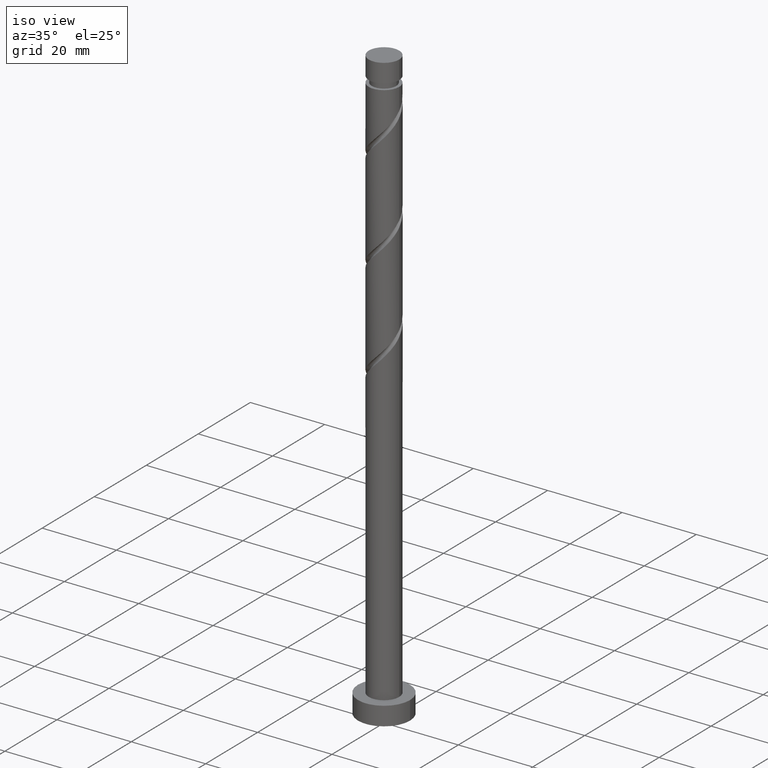
[diagram: clean part render]
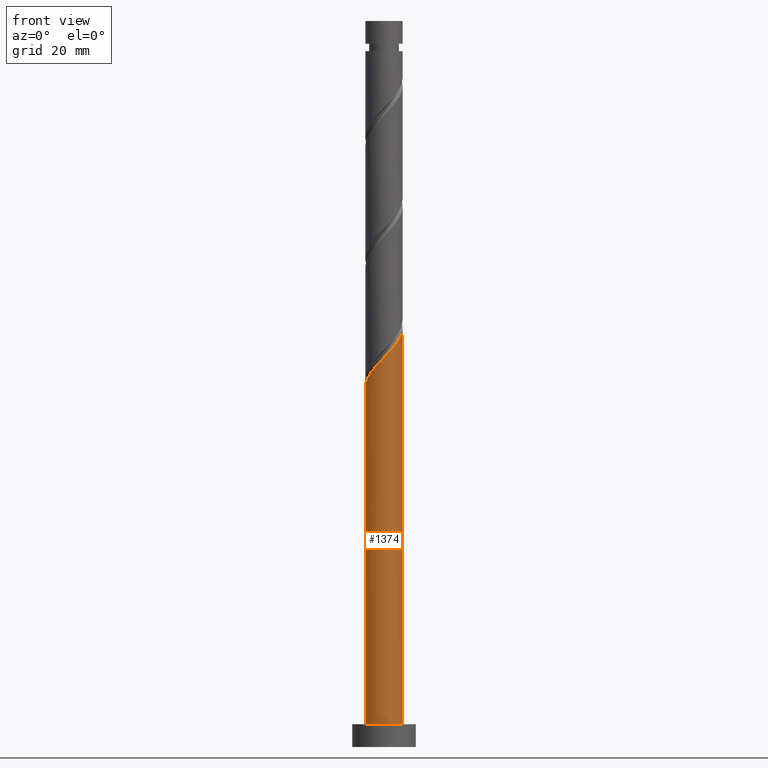
[diagram: tour spotlight — one face highlighted and labeled with its STEP entity id]
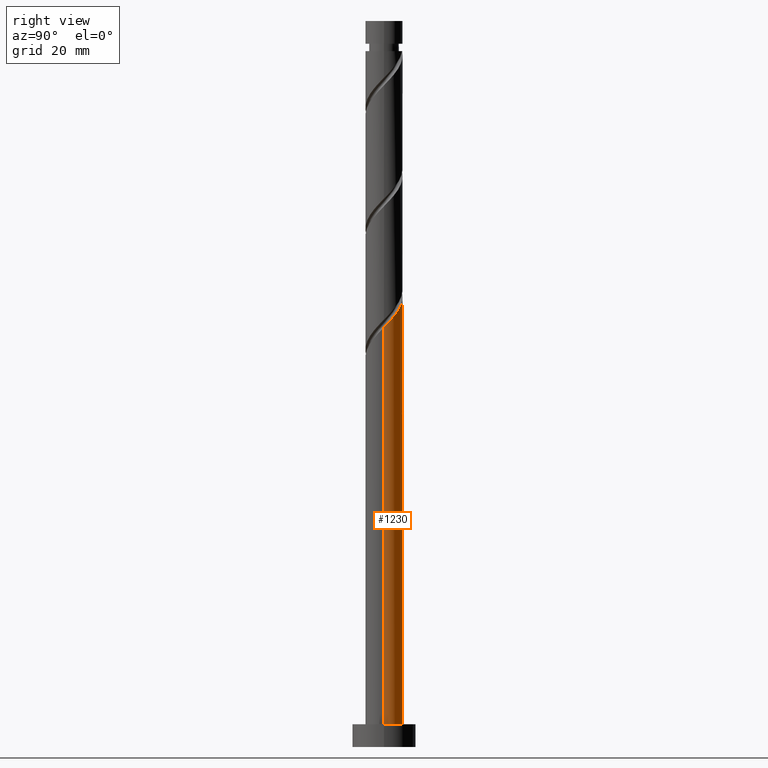
[diagram: tour spotlight — one face highlighted and labeled with its STEP entity id]
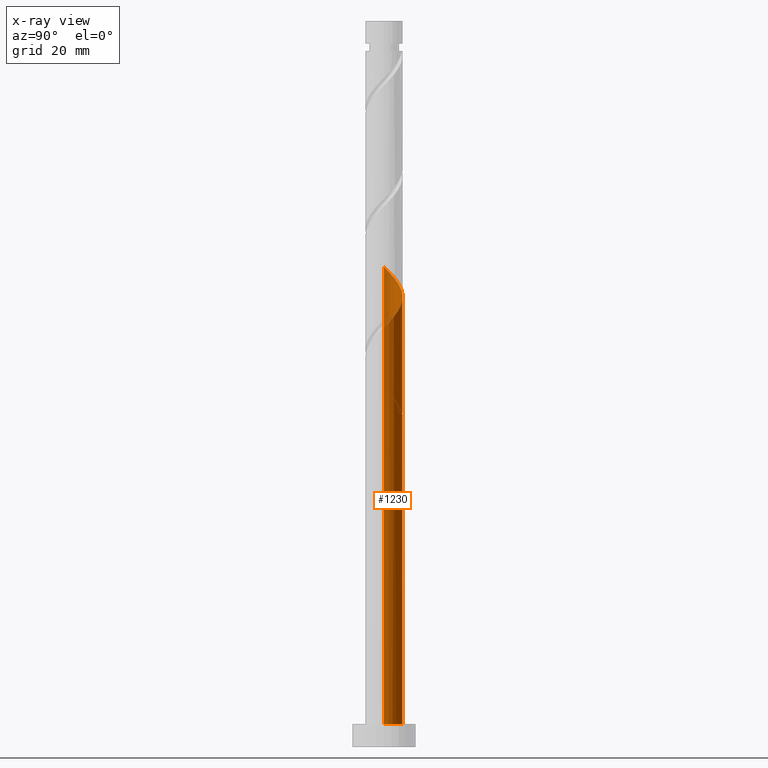
[diagram: x-ray of the same camera — body ghosted, this tour face saturated]
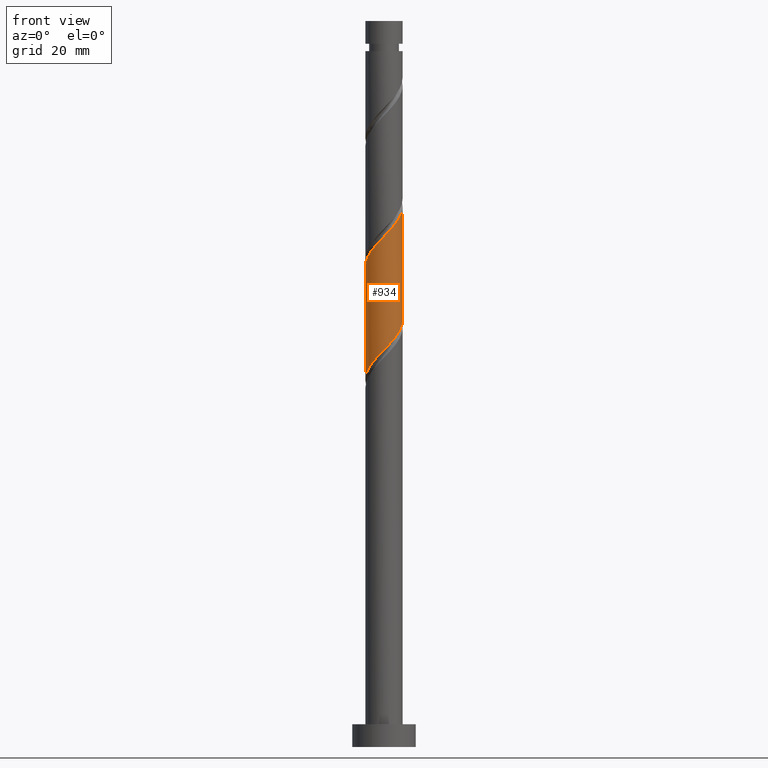
[diagram: tour spotlight — one face highlighted and labeled with its STEP entity id]
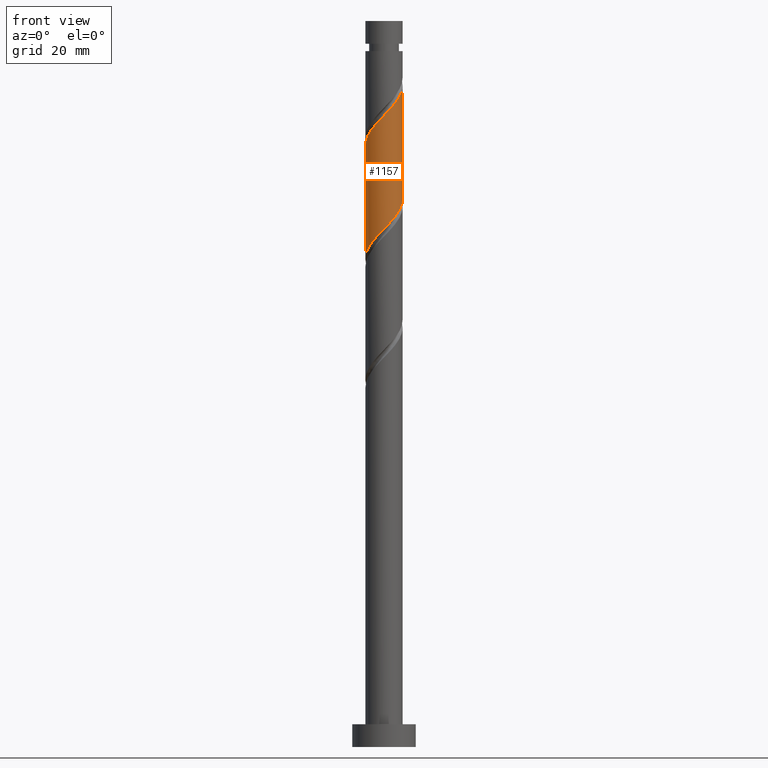
[diagram: tour spotlight — one face highlighted and labeled with its STEP entity id]
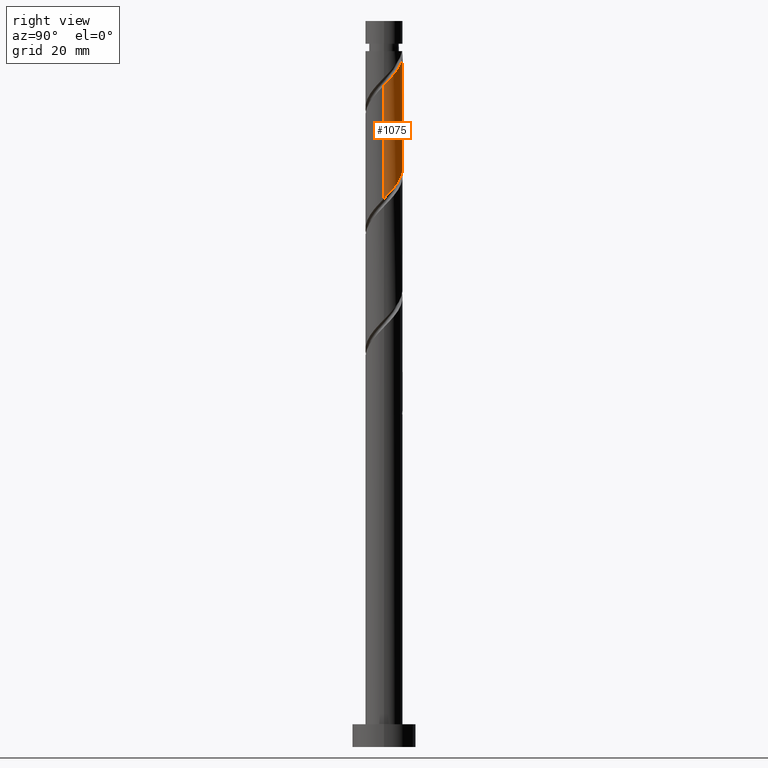
[diagram: tour spotlight — one face highlighted and labeled with its STEP entity id]
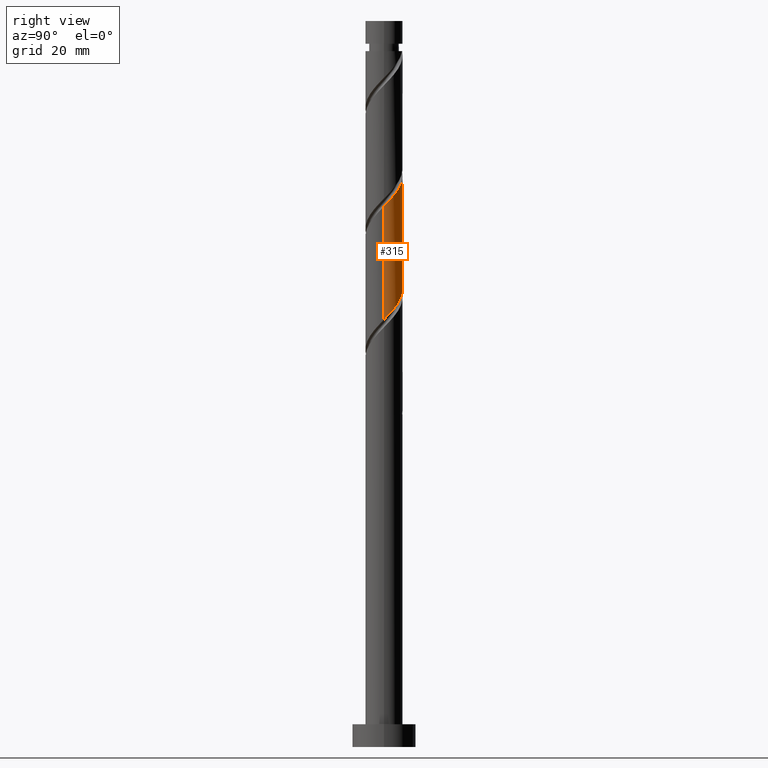
[diagram: tour spotlight — one face highlighted and labeled with its STEP entity id]
A machine part: a face-by-face anatomy tour. The part has 21 B-rep faces; the first image is the clean iso view, then the 6 largest visible faces are spotlighted one at a time (largest first), each with its STEP entity span.

Face 1 — front view, entity #1374. In plain terms, the highlighted cylindrical surface (edge-blend (fillet) strip) has radius 4.1 mm, axis along (-0, -0, -1).
Definition (entity closure, byte-faithful):
#6 = VERTEX_POINT ( 'NONE', #199 ) ;
#66 = CARTESIAN_POINT ( 'NONE',  ( 4.100000000000005862, 2.692227726629347217E-15, 92.50642430514879777 ) ) ;
#94 = CARTESIAN_POINT ( 'NONE',  ( -2.969276373543974668, -2.888061194458455105, 82.44678787535877973 ) ) ;
#105 = EDGE_CURVE ( 'NONE', #6, #269, #462, .T. ) ;
#113 = ORIENTED_EDGE ( 'NONE', *, *, #105, .T. ) ;
#117 = EDGE_CURVE ( 'NONE', #269, #1351, #1510, .T. ) ;
#123 = CARTESIAN_POINT ( 'NONE',  ( -2.035338952505686638, -3.607616248138971748, 83.65890908747999788 ) ) ;
#171 = EDGE_CURVE ( 'NONE', #6, #1177, #1147, .T. ) ;
#199 = CARTESIAN_POINT ( 'NONE',  ( -4.100000000000005862, -2.916580037181792983E-15, 79.17309097181549760 ) ) ;
#236 = CARTESIAN_POINT ( 'NONE',  ( 2.436092808849638747, -3.350067383216989825, 88.50739393596484206 ) ) ;
#245 = CARTESIAN_POINT ( 'NONE',  ( -4.099999999999999645, 0.000000000000000000, 5.000000000000000000 ) ) ;
#269 = VERTEX_POINT ( 'NONE', #245 ) ;
#322 = VECTOR ( 'NONE', #1647, 1000.000000000000000 ) ;
#353 = DIRECTION ( 'NONE',  ( 0.000000000000000000, 0.000000000000000000, 1.000000000000000000 ) ) ;
#360 = CARTESIAN_POINT ( 'NONE',  ( 3.993834187014795756, -0.9269781478718428502, 91.53769696626784480 ) ) ;
#365 = VECTOR ( 'NONE', #1247, 1000.000000000000000 ) ;
#377 = CARTESIAN_POINT ( 'NONE',  ( -4.100000000000004974, -0.1179796587476760611, 79.29518897653369436 ) ) ;
#393 = CARTESIAN_POINT ( 'NONE',  ( 0.000000000000000000, 0.000000000000000000, 160.0000000000000000 ) ) ;
#397 = LINE ( 'NONE', #904, #322 ) ;
#462 = LINE ( 'NONE', #599, #365 ) ;
#485 = CARTESIAN_POINT ( 'NONE',  ( 4.100000000000006750, -0.4695686022790016567, 92.02046435217749831 ) ) ;
#493 = CARTESIAN_POINT ( 'NONE',  ( -3.860989342997055207, -1.379406137895297979, 80.62860605717698093 ) ) ;
#599 = CARTESIAN_POINT ( 'NONE',  ( -4.099999999999999645, 0.000000000000000000, 160.0000000000000000 ) ) ;
#614 = CARTESIAN_POINT ( 'NONE',  ( 0.8158896984274293107, -4.018000000000006011, 86.68921211778302904 ) ) ;
#625 = CYLINDRICAL_SURFACE ( 'NONE', #1143, 4.099999999999999645 ) ;
#632 = CARTESIAN_POINT ( 'NONE',  ( 2.858664895739235767, -2.939053421404285160, 89.11345454202549377 ) ) ;
#726 = CARTESIAN_POINT ( 'NONE',  ( -4.059318004229835353, -0.8242796770264088080, 80.02254545111637185 ) ) ;
#756 = CARTESIAN_POINT ( 'NONE',  ( -3.315968527654124642, -2.411296896611320406, 81.84072726929818486 ) ) ;
#775 = EDGE_LOOP ( 'NONE', ( #1434, #1048, #113, #1192 ) ) ;
#867 = CARTESIAN_POINT ( 'NONE',  ( 3.570895916485998356, -2.014622136685606080, 90.32557575414665507 ) ) ;
#881 = CARTESIAN_POINT ( 'NONE',  ( -3.662660681764274173, -1.934532598764187483, 81.23466666323759000 ) ) ;
#891 = CARTESIAN_POINT ( 'NONE',  ( 4.099999999999999645, 5.021051876504147385E-16, 5.000000000000000000 ) ) ;
#899 = DIRECTION ( 'NONE',  ( -0.000000000000000000, -0.000000000000000000, -1.000000000000000000 ) ) ;
#904 = CARTESIAN_POINT ( 'NONE',  ( 4.099999999999999645, 5.021051876504147385E-16, 160.0000000000000000 ) ) ;
#986 = CARTESIAN_POINT ( 'NONE',  ( -0.3491609805032962477, -4.085105458821598923, 85.47709090566183932 ) ) ;
#995 = CARTESIAN_POINT ( 'NONE',  ( -2.502307663024830209, -3.247838721298713871, 83.05284848141941723 ) ) ;
#998 = AXIS2_PLACEMENT_3D ( 'NONE', #1648, #353, #1361 ) ;
#1014 = CARTESIAN_POINT ( 'NONE',  ( 0.2381885131556258917, -4.135307228927975309, 86.08315151172243418 ) ) ;
#1023 = FACE_OUTER_BOUND ( 'NONE', #775, .T. ) ;
#1048 = ORIENTED_EDGE ( 'NONE', *, *, #171, .F. ) ;
#1104 = CARTESIAN_POINT ( 'NONE',  ( 4.100000000000005862, 2.692227726629347217E-15, 92.50642430514879777 ) ) ;
#1143 = AXIS2_PLACEMENT_3D ( 'NONE', #393, #899, #1380 ) ;
#1147 =( BOUNDED_CURVE ( )  B_SPLINE_CURVE ( 2, ( #1385, #377, #1494, #726, #493, #881, #756, #94, #995, #123, #1395, #1377, #986, #1014, #614, #1502, #1527, #236, #632, #1233, #867, #1264, #360, #485, #1104 ),
 .UNSPECIFIED., .F., .T. ) 
 B_SPLINE_CURVE_WITH_KNOTS ( ( 3, 2, 2, 2, 2, 2, 2, 2, 2, 2, 2, 2, 3 ),
 ( 0.05452521624175137721, 0.05681818181818176772, 0.06818181818181823228, 0.07954545454545458583, 0.09090909090909093937, 0.1022727272727272929, 0.1136363636363636465, 0.1250000000000000000, 0.1363636363636363535, 0.1477272727272727071, 0.1590909090909090606, 0.1704545454545454142, 0.1795252162417513564 ),
 .UNSPECIFIED. ) 
 CURVE ( )  GEOMETRIC_REPRESENTATION_ITEM ( )  RATIONAL_B_SPLINE_CURVE ( ( 0.9061101570135627892, 0.9072237824201450085, 0.9090909090909224943, 0.8998376744372248437, 0.9090909090909224943, 0.8998376744372248437, 0.9090909090909224943, 0.8998376744372248437, 0.9090909090909224943, 0.8998376744372248437, 0.9090909090909224943, 0.8998376744372248437, 0.9090909090909224943, 0.8998376744372248437, 0.9090909090909224943, 0.8998376744372248437, 0.9090909090909224943, 0.8998376744372248437, 0.9090909090909224943, 0.8998376744372248437, 0.9090909090909224943, 0.8998376744372248437, 0.9090909090909224943, 0.9017048011080022185, 0.9061101570135630112 ) ) 
 REPRESENTATION_ITEM ( '' )  );
#1177 = VERTEX_POINT ( 'NONE', #66 ) ;
#1192 = ORIENTED_EDGE ( 'NONE', *, *, #117, .T. ) ;
#1233 = CARTESIAN_POINT ( 'NONE',  ( 3.281236982628834120, -2.528039459591579163, 89.71951514808606021 ) ) ;
#1247 = DIRECTION ( 'NONE',  ( -0.000000000000000000, -0.000000000000000000, -1.000000000000000000 ) ) ;
#1264 = CARTESIAN_POINT ( 'NONE',  ( 3.860554850343162592, -1.501204813779630332, 90.93163636020726415 ) ) ;
#1351 = VERTEX_POINT ( 'NONE', #891 ) ;
#1361 = DIRECTION ( 'NONE',  ( 1.000000000000000000, 0.000000000000000000, 0.000000000000000000 ) ) ;
#1374 = ADVANCED_FACE ( 'NONE', ( #1023 ), #625, .T. ) ;
#1377 = CARTESIAN_POINT ( 'NONE',  ( -0.9365104741622178874, -4.034903688715222536, 84.87103029960123024 ) ) ;
#1380 = DIRECTION ( 'NONE',  ( -1.000000000000000000, 0.000000000000000000, 0.000000000000000000 ) ) ;
#1385 = CARTESIAN_POINT ( 'NONE',  ( -4.100000000000005862, -2.916580037181792588E-15, 79.17309097181549760 ) ) ;
#1395 = CARTESIAN_POINT ( 'NONE',  ( -1.485924713333953040, -3.821259968427096698, 84.26496969354060695 ) ) ;
#1434 = ORIENTED_EDGE ( 'NONE', *, *, #1608, .F. ) ;
#1494 = CARTESIAN_POINT ( 'NONE',  ( -4.093215763958132136, -0.2357640975311774689, 79.41648484505576278 ) ) ;
#1502 = CARTESIAN_POINT ( 'NONE',  ( 1.393590883699232563, -3.900692771072037157, 87.29527272384365233 ) ) ;
#1510 = CIRCLE ( 'NONE', #998, 4.099999999999999645 ) ;
#1527 = CARTESIAN_POINT ( 'NONE',  ( 1.914841846274434989, -3.625380077144515045, 87.90133332990426140 ) ) ;
#1608 = EDGE_CURVE ( 'NONE', #1177, #1351, #397, .T. ) ;
#1647 = DIRECTION ( 'NONE',  ( -0.000000000000000000, -0.000000000000000000, -1.000000000000000000 ) ) ;
#1648 = CARTESIAN_POINT ( 'NONE',  ( 0.000000000000000000, 0.000000000000000000, 5.000000000000000000 ) ) ;

Face 2 — right view, entity #1230. An x-ray twin of the same camera follows (body ghosted, this face saturated) — the face is partly hidden behind the body. In plain terms, the highlighted cylindrical surface (edge-blend (fillet) strip) has radius 4.1 mm, axis along (-0, -0, -1).
Definition (entity closure, byte-faithful):
#6 = VERTEX_POINT ( 'NONE', #199 ) ;
#55 = CARTESIAN_POINT ( 'NONE',  ( 3.315968527654125086, 2.411296896611319518, 95.17406060263151346 ) ) ;
#65 = EDGE_CURVE ( 'NONE', #1177, #302, #1607, .T. ) ;
#66 = CARTESIAN_POINT ( 'NONE',  ( 4.100000000000005862, 2.692227726629347217E-15, 92.50642430514879777 ) ) ;
#72 = CARTESIAN_POINT ( 'NONE',  ( -3.570895916485998356, 2.014622136685605192, 103.6589090874799979 ) ) ;
#76 = CARTESIAN_POINT ( 'NONE',  ( -2.858664895739235767, 2.939053421404285160, 75.78012120869213675 ) ) ;
#80 = CARTESIAN_POINT ( 'NONE',  ( 4.093215763958132136, 0.2357640975311770248, 92.74981817838910558 ) ) ;
#105 = EDGE_CURVE ( 'NONE', #6, #269, #462, .T. ) ;
#114 =( BOUNDED_CURVE ( )  B_SPLINE_CURVE ( 2, ( #1480, #1348, #716, #1631, #76, #1222, #203, #1489, #587, #332, #1215 ),
 .UNSPECIFIED., .F., .T. ) 
 B_SPLINE_CURVE_WITH_KNOTS ( ( 3, 2, 2, 2, 2, 3 ),
 ( 0.000000000000000000, 0.01136363636363635354, 0.02272727272727270709, 0.03409090909090906063, 0.04545454545454541417, 0.05452521624175137721 ),
 .UNSPECIFIED. ) 
 CURVE ( )  GEOMETRIC_REPRESENTATION_ITEM ( )  RATIONAL_B_SPLINE_CURVE ( ( 0.9090909090909224943, 0.8998376744372248437, 0.9090909090909224943, 0.8998376744372248437, 0.9090909090909224943, 0.8998376744372248437, 0.9090909090909224943, 0.8998376744372248437, 0.9090909090909224943, 0.9017048011080023295, 0.9061101570135627892 ) ) 
 REPRESENTATION_ITEM ( '' )  );
#134 = ORIENTED_EDGE ( 'NONE', *, *, #65, .F. ) ;
#188 = ORIENTED_EDGE ( 'NONE', *, *, #588, .F. ) ;
#199 = CARTESIAN_POINT ( 'NONE',  ( -4.100000000000005862, -2.916580037181792983E-15, 79.17309097181549760 ) ) ;
#203 = CARTESIAN_POINT ( 'NONE',  ( -3.570895916485998356, 2.014622136685605192, 76.99224242081332648 ) ) ;
#206 = CARTESIAN_POINT ( 'NONE',  ( 3.662660681764275061, 1.934532598764186817, 94.56799999657090439 ) ) ;
#242 = CIRCLE ( 'NONE', #268, 4.099999999999999645 ) ;
#245 = CARTESIAN_POINT ( 'NONE',  ( -4.099999999999999645, 0.000000000000000000, 5.000000000000000000 ) ) ;
#258 = CARTESIAN_POINT ( 'NONE',  ( 0.2381885131556262802, 4.135307228927969980, 73.96193939051035215 ) ) ;
#268 = AXIS2_PLACEMENT_3D ( 'NONE', #321, #861, #828 ) ;
#269 = VERTEX_POINT ( 'NONE', #245 ) ;
#297 = CARTESIAN_POINT ( 'NONE',  ( 0.000000000000000000, 0.000000000000000000, 5.000000000000000000 ) ) ;
#302 = VERTEX_POINT ( 'NONE', #1633 ) ;
#319 = CARTESIAN_POINT ( 'NONE',  ( 4.059318004229835353, 0.8242796770264082529, 93.35587878444968624 ) ) ;
#321 = CARTESIAN_POINT ( 'NONE',  ( 0.000000000000000000, 0.000000000000000000, 73.35587878444970045 ) ) ;
#322 = VECTOR ( 'NONE', #1647, 1000.000000000000000 ) ;
#328 = ORIENTED_EDGE ( 'NONE', *, *, #1103, .T. ) ;
#332 = CARTESIAN_POINT ( 'NONE',  ( -4.100000000000005862, 0.4695686022790006020, 78.68713101884419814 ) ) ;
#344 = CARTESIAN_POINT ( 'NONE',  ( 1.485924713333951486, 3.821259968427097142, 97.59830302687394976 ) ) ;
#359 = CARTESIAN_POINT ( 'NONE',  ( 0.8158896984274299768, 4.017999999999999794, 73.35587878444970045 ) ) ;
#365 = VECTOR ( 'NONE', #1247, 1000.000000000000000 ) ;
#381 = CARTESIAN_POINT ( 'NONE',  ( -3.315968527654118425, 2.411296896611318630, 78.20436363293454463 ) ) ;
#397 = LINE ( 'NONE', #904, #322 ) ;
#437 = EDGE_CURVE ( 'NONE', #1351, #269, #1170, .T. ) ;
#447 = CARTESIAN_POINT ( 'NONE',  ( 0.000000000000000000, 0.000000000000000000, 160.0000000000000000 ) ) ;
#452 = CARTESIAN_POINT ( 'NONE',  ( -4.100000000000005862, -2.916580037181792983E-15, 105.8397576384821406 ) ) ;
#454 = AXIS2_PLACEMENT_3D ( 'NONE', #297, #1207, #671 ) ;
#462 = LINE ( 'NONE', #599, #365 ) ;
#470 = CARTESIAN_POINT ( 'NONE',  ( -2.858664895739235767, 2.939053421404285160, 102.4467878753587797 ) ) ;
#472 = DIRECTION ( 'NONE',  ( -0.000000000000000000, -0.000000000000000000, -1.000000000000000000 ) ) ;
#499 = CARTESIAN_POINT ( 'NONE',  ( -0.9365104741622165552, 4.034903688715218983, 75.17406060263152767 ) ) ;
#551 = VERTEX_POINT ( 'NONE', #1500 ) ;
#558 = CARTESIAN_POINT ( 'NONE',  ( 4.100000000000004974, 0.1179796587476746594, 92.62852230986703717 ) ) ;
#567 = CARTESIAN_POINT ( 'NONE',  ( -0.8158896984274289776, 4.018000000000006011, 100.0225454511163576 ) ) ;
#575 = CARTESIAN_POINT ( 'NONE',  ( 0.9365104741622184426, 4.034903688715222536, 98.20436363293457305 ) ) ;
#577 = FACE_OUTER_BOUND ( 'NONE', #765, .T. ) ;
#587 = CARTESIAN_POINT ( 'NONE',  ( -3.993834187014794868, 0.9269781478718429613, 78.20436363293455884 ) ) ;
#588 = EDGE_CURVE ( 'NONE', #551, #6, #114, .T. ) ;
#591 = CARTESIAN_POINT ( 'NONE',  ( 2.035338952505684418, 3.607616248138972637, 96.99224242081335490 ) ) ;
#599 = CARTESIAN_POINT ( 'NONE',  ( -4.099999999999999645, 0.000000000000000000, 160.0000000000000000 ) ) ;
#601 = LINE ( 'NONE', #837, #1492 ) ;
#629 = CARTESIAN_POINT ( 'NONE',  ( -3.860989342997048546, 1.379406137895297091, 79.41648484505576278 ) ) ;
#653 = CARTESIAN_POINT ( 'NONE',  ( -3.662660681764268400, 1.934532598764186151, 78.81042423899516791 ) ) ;
#671 = DIRECTION ( 'NONE',  ( 1.000000000000000000, 0.000000000000000000, 0.000000000000000000 ) ) ;
#683 = CARTESIAN_POINT ( 'NONE',  ( -4.100000000000005862, 0.4695686022790031000, 105.3537976855108269 ) ) ;
#710 = CARTESIAN_POINT ( 'NONE',  ( 2.502307663024829765, 3.247838721298714315, 96.38618181475274582 ) ) ;
#713 = EDGE_CURVE ( 'NONE', #1493, #1536, #1545, .T. ) ;
#716 = CARTESIAN_POINT ( 'NONE',  ( -1.914841846274436321, 3.625380077144514157, 74.56799999657093281 ) ) ;
#738 = CARTESIAN_POINT ( 'NONE',  ( -4.100000000000000533, 3.918687024316077637E-15, 80.87199993041727453 ) ) ;
#765 = EDGE_LOOP ( 'NONE', ( #134, #835, #988, #1444, #188, #328, #1379, #1032 ) ) ;
#816 = CARTESIAN_POINT ( 'NONE',  ( 4.100000000000005862, 2.692227726629347217E-15, 92.50642430514879777 ) ) ;
#825 = CARTESIAN_POINT ( 'NONE',  ( -0.2381885131556253365, 4.135307228927975309, 99.41648484505576278 ) ) ;
#828 = DIRECTION ( 'NONE',  ( -1.000000000000000000, 0.000000000000000000, 0.000000000000000000 ) ) ;
#835 = ORIENTED_EDGE ( 'NONE', *, *, #1608, .T. ) ;
#837 = CARTESIAN_POINT ( 'NONE',  ( -4.099999999999999645, 0.000000000000000000, 160.0000000000000000 ) ) ;
#861 = DIRECTION ( 'NONE',  ( 0.000000000000000000, -0.000000000000000000, -1.000000000000000000 ) ) ;
#886 = CARTESIAN_POINT ( 'NONE',  ( -4.059318004229829135, 0.8242796770264084749, 80.02254545111635764 ) ) ;
#891 = CARTESIAN_POINT ( 'NONE',  ( 4.099999999999999645, 5.021051876504147385E-16, 5.000000000000000000 ) ) ;
#900 = CARTESIAN_POINT ( 'NONE',  ( -2.969276373543969783, 2.888061194458451553, 77.59830302687393555 ) ) ;
#904 = CARTESIAN_POINT ( 'NONE',  ( 4.099999999999999645, 5.021051876504147385E-16, 160.0000000000000000 ) ) ;
#964 = CARTESIAN_POINT ( 'NONE',  ( 2.969276373543977332, 2.888061194458452885, 95.78012120869210833 ) ) ;
#988 = ORIENTED_EDGE ( 'NONE', *, *, #437, .T. ) ;
#992 = CARTESIAN_POINT ( 'NONE',  ( -2.502307663024826656, 3.247838721298709430, 76.99224242081334069 ) ) ;
#1032 = ORIENTED_EDGE ( 'NONE', *, *, #1180, .F. ) ;
#1082 = CARTESIAN_POINT ( 'NONE',  ( -3.860554850343162148, 1.501204813779631886, 104.2649696935406354 ) ) ;
#1084 = DIRECTION ( 'NONE',  ( -0.000000000000000000, -0.000000000000000000, -1.000000000000000000 ) ) ;
#1096 = CARTESIAN_POINT ( 'NONE',  ( -1.393590883699233451, 3.900692771072036269, 100.6286060571769809 ) ) ;
#1103 = EDGE_CURVE ( 'NONE', #551, #1536, #242, .T. ) ;
#1170 = CIRCLE ( 'NONE', #454, 4.099999999999999645 ) ;
#1177 = VERTEX_POINT ( 'NONE', #66 ) ;
#1180 = EDGE_CURVE ( 'NONE', #302, #1493, #601, .T. ) ;
#1203 = CARTESIAN_POINT ( 'NONE',  ( 3.860989342997055207, 1.379406137895297535, 93.96193939051030952 ) ) ;
#1205 = CYLINDRICAL_SURFACE ( 'NONE', #1225, 4.099999999999999645 ) ;
#1207 = DIRECTION ( 'NONE',  ( 0.000000000000000000, 0.000000000000000000, 1.000000000000000000 ) ) ;
#1211 = CARTESIAN_POINT ( 'NONE',  ( -3.993834187014794868, 0.9269781478718429613, 104.8710302996012160 ) ) ;
#1215 = CARTESIAN_POINT ( 'NONE',  ( -4.100000000000005862, -2.916580037181792588E-15, 79.17309097181549760 ) ) ;
#1222 = CARTESIAN_POINT ( 'NONE',  ( -3.281236982628834120, 2.528039459591579163, 76.38618181475273161 ) ) ;
#1225 = AXIS2_PLACEMENT_3D ( 'NONE', #447, #1084, #1604 ) ;
#1230 = ADVANCED_FACE ( 'NONE', ( #577 ), #1205, .T. ) ;
#1247 = DIRECTION ( 'NONE',  ( -0.000000000000000000, -0.000000000000000000, -1.000000000000000000 ) ) ;
#1261 = CARTESIAN_POINT ( 'NONE',  ( -4.099999999999999645, 0.1179796587476743958, 80.74990192569903513 ) ) ;
#1276 = CARTESIAN_POINT ( 'NONE',  ( -1.485924713333949487, 3.821259968427092701, 75.78012120869213675 ) ) ;
#1285 = CARTESIAN_POINT ( 'NONE',  ( -4.093215763958126807, 0.2357640975311781073, 80.62860605717698093 ) ) ;
#1335 = CARTESIAN_POINT ( 'NONE',  ( -1.914841846274436321, 3.625380077144514157, 101.2346666632375900 ) ) ;
#1348 = CARTESIAN_POINT ( 'NONE',  ( -1.393590883699233451, 3.900692771072036269, 73.96193939051032373 ) ) ;
#1351 = VERTEX_POINT ( 'NONE', #891 ) ;
#1379 = ORIENTED_EDGE ( 'NONE', *, *, #713, .F. ) ;
#1399 = CARTESIAN_POINT ( 'NONE',  ( -2.035338952505682197, 3.607616248138967752, 76.38618181475274582 ) ) ;
#1414 = CARTESIAN_POINT ( 'NONE',  ( 0.8158896984274300879, 4.017999999999999794, 73.35587878444971466 ) ) ;
#1444 = ORIENTED_EDGE ( 'NONE', *, *, #105, .F. ) ;
#1468 = CARTESIAN_POINT ( 'NONE',  ( 0.3491609805032966363, 4.085105458821598923, 98.81042423899519633 ) ) ;
#1480 = CARTESIAN_POINT ( 'NONE',  ( -0.8158896984274286446, 4.018000000000005123, 73.35587878444970045 ) ) ;
#1489 = CARTESIAN_POINT ( 'NONE',  ( -3.860554850343162148, 1.501204813779631886, 77.59830302687392134 ) ) ;
#1492 = VECTOR ( 'NONE', #472, 1000.000000000000000 ) ;
#1493 = VERTEX_POINT ( 'NONE', #738 ) ;
#1500 = CARTESIAN_POINT ( 'NONE',  ( -0.8158896984274286446, 4.018000000000005123, 73.35587878444970045 ) ) ;
#1515 = CARTESIAN_POINT ( 'NONE',  ( -0.3491609805032951930, 4.085105458821591817, 74.56799999657090439 ) ) ;
#1524 = CARTESIAN_POINT ( 'NONE',  ( -4.100000000000000533, 3.918687024316077637E-15, 80.87199993041727453 ) ) ;
#1536 = VERTEX_POINT ( 'NONE', #359 ) ;
#1545 =( BOUNDED_CURVE ( )  B_SPLINE_CURVE ( 2, ( #1524, #1261, #1285, #886, #629, #653, #381, #900, #992, #1399, #1276, #499, #1515, #258, #1414 ),
 .UNSPECIFIED., .F., .T. ) 
 B_SPLINE_CURVE_WITH_KNOTS ( ( 3, 2, 2, 2, 2, 2, 2, 3 ),
 ( 0.9295252162417513286, 0.9318181818181817677, 0.9431818181818182323, 0.9545454545454545858, 0.9659090909090909394, 0.9772727272727272929, 0.9886363636363636465, 1.000000000000000000 ),
 .UNSPECIFIED. ) 
 CURVE ( )  GEOMETRIC_REPRESENTATION_ITEM ( )  RATIONAL_B_SPLINE_CURVE ( ( 0.9061101570135565719, 0.9072237824201386802, 0.9090909090909161661, 0.8998376744372185154, 0.9090909090909161661, 0.8998376744372185154, 0.9090909090909161661, 0.8998376744372185154, 0.9090909090909161661, 0.8998376744372185154, 0.9090909090909161661, 0.8998376744372185154, 0.9090909090909161661, 0.8998376744372185154, 0.9090909090909161661 ) ) 
 REPRESENTATION_ITEM ( '' )  );
#1604 = DIRECTION ( 'NONE',  ( -1.000000000000000000, 0.000000000000000000, 0.000000000000000000 ) ) ;
#1607 =( BOUNDED_CURVE ( )  B_SPLINE_CURVE ( 2, ( #816, #558, #80, #319, #1203, #206, #55, #964, #710, #591, #344, #575, #1468, #825, #567, #1096, #1335, #1620, #470, #1613, #72, #1082, #1211, #683, #452 ),
 .UNSPECIFIED., .F., .T. ) 
 B_SPLINE_CURVE_WITH_KNOTS ( ( 3, 2, 2, 2, 2, 2, 2, 2, 2, 2, 2, 2, 3 ),
 ( 0.1795252162417513564, 0.1818181818181817677, 0.1931818181818182323, 0.2045454545454545858, 0.2159090909090909394, 0.2272727272727272929, 0.2386363636363636465, 0.2500000000000000000, 0.2613636363636363535, 0.2727272727272727071, 0.2840909090909090606, 0.2954545454545454142, 0.3045252162417513286 ),
 .UNSPECIFIED. ) 
 CURVE ( )  GEOMETRIC_REPRESENTATION_ITEM ( )  RATIONAL_B_SPLINE_CURVE ( ( 0.9061101570135630112, 0.9072237824201451195, 0.9090909090909224943, 0.8998376744372248437, 0.9090909090909224943, 0.8998376744372248437, 0.9090909090909224943, 0.8998376744372248437, 0.9090909090909224943, 0.8998376744372248437, 0.9090909090909224943, 0.8998376744372248437, 0.9090909090909224943, 0.8998376744372248437, 0.9090909090909224943, 0.8998376744372248437, 0.9090909090909224943, 0.8998376744372248437, 0.9090909090909224943, 0.8998376744372248437, 0.9090909090909224943, 0.8998376744372248437, 0.9090909090909224943, 0.9017048011080023295, 0.9061101570135629002 ) ) 
 REPRESENTATION_ITEM ( '' )  );
#1608 = EDGE_CURVE ( 'NONE', #1177, #1351, #397, .T. ) ;
#1613 = CARTESIAN_POINT ( 'NONE',  ( -3.281236982628834120, 2.528039459591579163, 103.0528484814194030 ) ) ;
#1620 = CARTESIAN_POINT ( 'NONE',  ( -2.436092808849638747, 3.350067383216990269, 101.8407272692981849 ) ) ;
#1631 = CARTESIAN_POINT ( 'NONE',  ( -2.436092808849638747, 3.350067383216990269, 75.17406060263152767 ) ) ;
#1633 = CARTESIAN_POINT ( 'NONE',  ( -4.100000000000005862, -2.916580037181792983E-15, 105.8397576384821406 ) ) ;
#1647 = DIRECTION ( 'NONE',  ( -0.000000000000000000, -0.000000000000000000, -1.000000000000000000 ) ) ;

Face 3 — front view, entity #934. In plain terms, the highlighted cylindrical surface (edge-blend (fillet) strip) has radius 4.1 mm, axis along (-0, -0, -1).
Definition (entity closure, byte-faithful):
#7 = CARTESIAN_POINT ( 'NONE',  ( 4.100000000000005862, 2.692227726629347217E-15, 119.1730909718154976 ) ) ;
#49 = FACE_OUTER_BOUND ( 'NONE', #1296, .T. ) ;
#84 = CARTESIAN_POINT ( 'NONE',  ( 3.860989342997048546, -1.379406137895297535, 92.74981817838909137 ) ) ;
#130 = CARTESIAN_POINT ( 'NONE',  ( 4.100000000000005862, 2.692227726629347217E-15, 119.1730909718154976 ) ) ;
#140 = ORIENTED_EDGE ( 'NONE', *, *, #980, .F. ) ;
#163 = CARTESIAN_POINT ( 'NONE',  ( 3.993834187014795756, -0.9269781478718428502, 118.2043636329345304 ) ) ;
#166 = VERTEX_POINT ( 'NONE', #369 ) ;
#170 =( BOUNDED_CURVE ( )  B_SPLINE_CURVE ( 2, ( #546, #572, #926, #194, #261, #422, #1070, #917, #1303, #1440, #698, #180, #1078, #820, #1591, #440, #687, #1561, #1052, #1456, #555, #1430, #163, #1571, #130 ),
 .UNSPECIFIED., .F., .T. ) 
 B_SPLINE_CURVE_WITH_KNOTS ( ( 3, 2, 2, 2, 2, 2, 2, 2, 2, 2, 2, 2, 3 ),
 ( 0.3045252162417513286, 0.3068181818181817677, 0.3181818181818182323, 0.3295454545454545858, 0.3409090909090909394, 0.3522727272727272929, 0.3636363636363636465, 0.3750000000000000000, 0.3863636363636363535, 0.3977272727272727071, 0.4090909090909090606, 0.4204545454545454142, 0.4295252162417514952 ),
 .UNSPECIFIED. ) 
 CURVE ( )  GEOMETRIC_REPRESENTATION_ITEM ( )  RATIONAL_B_SPLINE_CURVE ( ( 0.9061101570135629002, 0.9072237824201450085, 0.9090909090909224943, 0.8998376744372248437, 0.9090909090909224943, 0.8998376744372248437, 0.9090909090909224943, 0.8998376744372248437, 0.9090909090909224943, 0.8998376744372248437, 0.9090909090909224943, 0.8998376744372248437, 0.9090909090909224943, 0.8998376744372248437, 0.9090909090909224943, 0.8998376744372248437, 0.9090909090909224943, 0.8998376744372248437, 0.9090909090909224943, 0.8998376744372248437, 0.9090909090909224943, 0.8998376744372248437, 0.9090909090909224943, 0.9017048011080021075, 0.9061101570135630112 ) ) 
 REPRESENTATION_ITEM ( '' )  );
#180 = CARTESIAN_POINT ( 'NONE',  ( -0.9365104741622178874, -4.034903688715222536, 111.5376969662679016 ) ) ;
#194 = CARTESIAN_POINT ( 'NONE',  ( -4.059318004229835353, -0.8242796770264088080, 106.6892121177830433 ) ) ;
#216 = LINE ( 'NONE', #852, #743 ) ;
#226 = CARTESIAN_POINT ( 'NONE',  ( -1.393590883699232119, -3.900692771072031828, 86.08315151172243418 ) ) ;
#233 = CARTESIAN_POINT ( 'NONE',  ( -4.100000000000000533, -0.4695686022790014902, 81.35795988338854556 ) ) ;
#261 = CARTESIAN_POINT ( 'NONE',  ( -3.860989342997055207, -1.379406137895297979, 107.2952727238436523 ) ) ;
#302 = VERTEX_POINT ( 'NONE', #1633 ) ;
#324 = CARTESIAN_POINT ( 'NONE',  ( -1.914841846274434101, -3.625380077144507940, 85.47709090566183932 ) ) ;
#343 =( BOUNDED_CURVE ( )  B_SPLINE_CURVE ( 2, ( #846, #952, #1464, #466, #84, #968, #595, #482, #476, #975, #706, #349, #855, #1365, #1086, #226, #324, #730, #1237, #984, #357, #863, #1372, #233, #736 ),
 .UNSPECIFIED., .F., .T. ) 
 B_SPLINE_CURVE_WITH_KNOTS ( ( 3, 2, 2, 2, 2, 2, 2, 2, 2, 2, 2, 2, 3 ),
 ( 0.8045252162417512176, 0.8068181818181817677, 0.8181818181818182323, 0.8295454545454545858, 0.8409090909090909394, 0.8522727272727272929, 0.8636363636363636465, 0.8750000000000000000, 0.8863636363636363535, 0.8977272727272727071, 0.9090909090909090606, 0.9204545454545454142, 0.9295252162417513286 ),
 .UNSPECIFIED. ) 
 CURVE ( )  GEOMETRIC_REPRESENTATION_ITEM ( )  RATIONAL_B_SPLINE_CURVE ( ( 0.9061101570135564609, 0.9072237824201385692, 0.9090909090909161661, 0.8998376744372185154, 0.9090909090909161661, 0.8998376744372185154, 0.9090909090909161661, 0.8998376744372185154, 0.9090909090909161661, 0.8998376744372185154, 0.9090909090909161661, 0.8998376744372185154, 0.9090909090909161661, 0.8998376744372185154, 0.9090909090909161661, 0.8998376744372185154, 0.9090909090909161661, 0.8998376744372185154, 0.9090909090909161661, 0.8998376744372185154, 0.9090909090909161661, 0.8998376744372185154, 0.9090909090909161661, 0.9017048011079960013, 0.9061101570135565719 ) ) 
 REPRESENTATION_ITEM ( '' )  );
#349 = CARTESIAN_POINT ( 'NONE',  ( 0.9365104741622169993, -4.034903688715218095, 88.50739393596485627 ) ) ;
#357 = CARTESIAN_POINT ( 'NONE',  ( -3.570895916485993471, -2.014622136685600751, 83.05284848141940302 ) ) ;
#369 = CARTESIAN_POINT ( 'NONE',  ( 4.100000000000000533, -4.831053087229362448E-15, 94.20533326375061733 ) ) ;
#414 = EDGE_CURVE ( 'NONE', #302, #719, #170, .T. ) ;
#422 = CARTESIAN_POINT ( 'NONE',  ( -3.662660681764274173, -1.934532598764187483, 107.9013333299042472 ) ) ;
#440 = CARTESIAN_POINT ( 'NONE',  ( 1.393590883699232563, -3.900692771072037157, 113.9619393905102953 ) ) ;
#466 = CARTESIAN_POINT ( 'NONE',  ( 4.059318004229829135, -0.8242796770264090300, 93.35587878444971466 ) ) ;
#472 = DIRECTION ( 'NONE',  ( -0.000000000000000000, -0.000000000000000000, -1.000000000000000000 ) ) ;
#476 = CARTESIAN_POINT ( 'NONE',  ( 2.502307663024825768, -3.247838721298709430, 90.32557575414668349 ) ) ;
#482 = CARTESIAN_POINT ( 'NONE',  ( 2.969276373543971115, -2.888061194458450665, 90.93163636020729257 ) ) ;
#546 = CARTESIAN_POINT ( 'NONE',  ( -4.100000000000005862, -2.916580037181792983E-15, 105.8397576384821406 ) ) ;
#555 = CARTESIAN_POINT ( 'NONE',  ( 3.570895916485998356, -2.014622136685606080, 116.9922424208133407 ) ) ;
#572 = CARTESIAN_POINT ( 'NONE',  ( -4.100000000000004974, -0.1179796587476735215, 105.9618556432003373 ) ) ;
#595 = CARTESIAN_POINT ( 'NONE',  ( 3.315968527654119313, -2.411296896611318186, 91.53769696626788743 ) ) ;
#601 = LINE ( 'NONE', #837, #1492 ) ;
#607 = EDGE_CURVE ( 'NONE', #166, #1493, #343, .T. ) ;
#687 = CARTESIAN_POINT ( 'NONE',  ( 1.914841846274434989, -3.625380077144515045, 114.5679999965709328 ) ) ;
#698 = CARTESIAN_POINT ( 'NONE',  ( -1.485924713333953040, -3.821259968427096698, 110.9316363602072784 ) ) ;
#706 = CARTESIAN_POINT ( 'NONE',  ( 1.485924713333949487, -3.821259968427092701, 89.11345454202547955 ) ) ;
#719 = VERTEX_POINT ( 'NONE', #7 ) ;
#730 = CARTESIAN_POINT ( 'NONE',  ( -2.436092808849636082, -3.350067383216985828, 84.87103029960123024 ) ) ;
#736 = CARTESIAN_POINT ( 'NONE',  ( -4.100000000000000533, 3.918687024316077637E-15, 80.87199993041727453 ) ) ;
#738 = CARTESIAN_POINT ( 'NONE',  ( -4.100000000000000533, 3.918687024316077637E-15, 80.87199993041727453 ) ) ;
#743 = VECTOR ( 'NONE', #981, 1000.000000000000000 ) ;
#795 = AXIS2_PLACEMENT_3D ( 'NONE', #1559, #1178, #943 ) ;
#820 = CARTESIAN_POINT ( 'NONE',  ( 0.2381885131556258917, -4.135307228927975309, 112.7498181783890914 ) ) ;
#837 = CARTESIAN_POINT ( 'NONE',  ( -4.099999999999999645, 0.000000000000000000, 160.0000000000000000 ) ) ;
#846 = CARTESIAN_POINT ( 'NONE',  ( 4.100000000000000533, -4.831053087229362448E-15, 94.20533326375061733 ) ) ;
#852 = CARTESIAN_POINT ( 'NONE',  ( 4.099999999999999645, 5.021051876504147385E-16, 160.0000000000000000 ) ) ;
#855 = CARTESIAN_POINT ( 'NONE',  ( 0.3491609805032936387, -4.085105458821592705, 87.90133332990424719 ) ) ;
#863 = CARTESIAN_POINT ( 'NONE',  ( -3.860554850343157263, -1.501204813779628999, 82.44678787535882236 ) ) ;
#917 = CARTESIAN_POINT ( 'NONE',  ( -2.969276373543974668, -2.888061194458455105, 109.1134545420254511 ) ) ;
#926 = CARTESIAN_POINT ( 'NONE',  ( -4.093215763958132136, -0.2357640975311774689, 106.0831515117224484 ) ) ;
#934 = ADVANCED_FACE ( 'NONE', ( #49 ), #1169, .T. ) ;
#943 = DIRECTION ( 'NONE',  ( -1.000000000000000000, 0.000000000000000000, 0.000000000000000000 ) ) ;
#952 = CARTESIAN_POINT ( 'NONE',  ( 4.100000000000001421, -0.1179796587476694414, 94.08323525903237794 ) ) ;
#968 = CARTESIAN_POINT ( 'NONE',  ( 3.662660681764268400, -1.934532598764185707, 92.14375757232851072 ) ) ;
#975 = CARTESIAN_POINT ( 'NONE',  ( 2.035338952505681753, -3.607616248138968196, 89.71951514808610284 ) ) ;
#980 = EDGE_CURVE ( 'NONE', #719, #166, #216, .T. ) ;
#981 = DIRECTION ( 'NONE',  ( -0.000000000000000000, -0.000000000000000000, -1.000000000000000000 ) ) ;
#984 = CARTESIAN_POINT ( 'NONE',  ( -3.281236982628830123, -2.528039459591574722, 83.65890908747999788 ) ) ;
#1052 = CARTESIAN_POINT ( 'NONE',  ( 2.858664895739235767, -2.939053421404285160, 115.7801212086921510 ) ) ;
#1070 = CARTESIAN_POINT ( 'NONE',  ( -3.315968527654124642, -2.411296896611320406, 108.5073939359648847 ) ) ;
#1078 = CARTESIAN_POINT ( 'NONE',  ( -0.3491609805032962477, -4.085105458821598923, 112.1437575723284823 ) ) ;
#1086 = CARTESIAN_POINT ( 'NONE',  ( -0.8158896984274295328, -4.017999999999999794, 86.68921211778305747 ) ) ;
#1161 = ORIENTED_EDGE ( 'NONE', *, *, #1180, .T. ) ;
#1169 = CYLINDRICAL_SURFACE ( 'NONE', #795, 4.099999999999999645 ) ;
#1178 = DIRECTION ( 'NONE',  ( -0.000000000000000000, -0.000000000000000000, -1.000000000000000000 ) ) ;
#1180 = EDGE_CURVE ( 'NONE', #302, #1493, #601, .T. ) ;
#1237 = CARTESIAN_POINT ( 'NONE',  ( -2.858664895739233547, -2.939053421404278943, 84.26496969354060695 ) ) ;
#1283 = ORIENTED_EDGE ( 'NONE', *, *, #607, .F. ) ;
#1296 = EDGE_LOOP ( 'NONE', ( #140, #1358, #1161, #1283 ) ) ;
#1303 = CARTESIAN_POINT ( 'NONE',  ( -2.502307663024830209, -3.247838721298713871, 109.7195151480860460 ) ) ;
#1358 = ORIENTED_EDGE ( 'NONE', *, *, #414, .F. ) ;
#1365 = CARTESIAN_POINT ( 'NONE',  ( -0.2381885131556273905, -4.135307228927970868, 87.29527272384366654 ) ) ;
#1372 = CARTESIAN_POINT ( 'NONE',  ( -3.993834187014791759, -0.9269781478718408518, 81.84072726929819908 ) ) ;
#1430 = CARTESIAN_POINT ( 'NONE',  ( 3.860554850343162592, -1.501204813779630332, 117.5983030268739498 ) ) ;
#1440 = CARTESIAN_POINT ( 'NONE',  ( -2.035338952505686638, -3.607616248138971748, 110.3255757541466551 ) ) ;
#1456 = CARTESIAN_POINT ( 'NONE',  ( 3.281236982628834120, -2.528039459591579163, 116.3861818147527032 ) ) ;
#1464 = CARTESIAN_POINT ( 'NONE',  ( 4.093215763958126807, -0.2357640975311786624, 93.96193939051029531 ) ) ;
#1492 = VECTOR ( 'NONE', #472, 1000.000000000000000 ) ;
#1493 = VERTEX_POINT ( 'NONE', #738 ) ;
#1559 = CARTESIAN_POINT ( 'NONE',  ( 0.000000000000000000, 0.000000000000000000, 160.0000000000000000 ) ) ;
#1561 = CARTESIAN_POINT ( 'NONE',  ( 2.436092808849638747, -3.350067383216989825, 115.1740606026314993 ) ) ;
#1571 = CARTESIAN_POINT ( 'NONE',  ( 4.100000000000008527, -0.4695686022789946623, 118.6871310188442123 ) ) ;
#1591 = CARTESIAN_POINT ( 'NONE',  ( 0.8158896984274293107, -4.018000000000006011, 113.3558787844496862 ) ) ;
#1633 = CARTESIAN_POINT ( 'NONE',  ( -4.100000000000005862, -2.916580037181792983E-15, 105.8397576384821406 ) ) ;

Face 4 — front view, entity #1157. In plain terms, the highlighted cylindrical surface (edge-blend (fillet) strip) has radius 4.1 mm, axis along (-0, -0, -1).
Definition (entity closure, byte-faithful):
#27 = VERTEX_POINT ( 'NONE', #850 ) ;
#37 = VERTEX_POINT ( 'NONE', #176 ) ;
#39 = CARTESIAN_POINT ( 'NONE',  ( -2.858664895739233547, -2.939053421404278943, 110.9316363602072641 ) ) ;
#57 = CARTESIAN_POINT ( 'NONE',  ( -4.100000000000000533, 3.918687024316077637E-15, 107.5386665970839459 ) ) ;
#92 = CARTESIAN_POINT ( 'NONE',  ( 3.570895916485998356, -2.014622136685606080, 143.6589090874799695 ) ) ;
#138 = EDGE_CURVE ( 'NONE', #27, #1548, #1519, .T. ) ;
#161 = CARTESIAN_POINT ( 'NONE',  ( 3.860989342997048546, -1.379406137895297535, 119.4164848450557770 ) ) ;
#176 = CARTESIAN_POINT ( 'NONE',  ( 4.100000000000005862, 2.692227726629347217E-15, 145.8397576384821548 ) ) ;
#191 = CARTESIAN_POINT ( 'NONE',  ( 2.502307663024825768, -3.247838721298709430, 116.9922424208133549 ) ) ;
#205 = CARTESIAN_POINT ( 'NONE',  ( 4.100000000000004974, -0.4695686022790074299, 145.3537976855107843 ) ) ;
#228 = CARTESIAN_POINT ( 'NONE',  ( -0.3491609805032962477, -4.085105458821598923, 138.8104242389952105 ) ) ;
#235 = CARTESIAN_POINT ( 'NONE',  ( 3.993834187014795756, -0.9269781478718428502, 144.8710302996012160 ) ) ;
#253 = CARTESIAN_POINT ( 'NONE',  ( -4.099999999999999645, 0.000000000000000000, 160.0000000000000000 ) ) ;
#286 = CARTESIAN_POINT ( 'NONE',  ( 4.100000000000000533, -0.1179796587476751452, 120.7499019256990493 ) ) ;
#295 = CARTESIAN_POINT ( 'NONE',  ( 1.485924713333949487, -3.821259968427092701, 115.7801212086921367 ) ) ;
#304 = CARTESIAN_POINT ( 'NONE',  ( 3.662660681764268400, -1.934532598764185707, 118.8104242389951821 ) ) ;
#312 = CARTESIAN_POINT ( 'NONE',  ( 4.100000000000000533, -4.831053087229362448E-15, 120.8719999304172745 ) ) ;
#347 = CYLINDRICAL_SURFACE ( 'NONE', #350, 4.099999999999999645 ) ;
#350 = AXIS2_PLACEMENT_3D ( 'NONE', #728, #1337, #464 ) ;
#368 = CARTESIAN_POINT ( 'NONE',  ( -2.502307663024830209, -3.247838721298713871, 136.3861818147527174 ) ) ;
#429 = CARTESIAN_POINT ( 'NONE',  ( -3.993834187014791759, -0.9269781478718408518, 108.5073939359648705 ) ) ;
#438 = CARTESIAN_POINT ( 'NONE',  ( 4.100000000000000533, -4.831053087229362448E-15, 120.8719999304172745 ) ) ;
#464 = DIRECTION ( 'NONE',  ( -1.000000000000000000, 0.000000000000000000, 0.000000000000000000 ) ) ;
#478 = CARTESIAN_POINT ( 'NONE',  ( -4.100000000000004974, 2.826839112960814440E-15, 132.5064243051488120 ) ) ;
#492 = CARTESIAN_POINT ( 'NONE',  ( 2.858664895739235767, -2.939053421404285160, 142.4467878753588082 ) ) ;
#529 = CARTESIAN_POINT ( 'NONE',  ( -1.393590883699232119, -3.900692771072031828, 112.7498181783890914 ) ) ;
#553 = CARTESIAN_POINT ( 'NONE',  ( -3.570895916485993471, -2.014622136685600751, 109.7195151480860886 ) ) ;
#590 = CARTESIAN_POINT ( 'NONE',  ( -1.485924713333953040, -3.821259968427096698, 137.5983030268739640 ) ) ;
#604 = CARTESIAN_POINT ( 'NONE',  ( 3.860554850343162592, -1.501204813779630332, 144.2649696935406212 ) ) ;
#628 =( BOUNDED_CURVE ( )  B_SPLINE_CURVE ( 2, ( #478, #1484, #1375, #977, #1491, #857, #841, #1640, #368, #1224, #590, #1367, #228, #1095, #731, #1239, #1246, #1619, #492, #1350, #92, #604, #235, #205, #1109 ),
 .UNSPECIFIED., .F., .T. ) 
 B_SPLINE_CURVE_WITH_KNOTS ( ( 3, 2, 2, 2, 2, 2, 2, 2, 2, 2, 2, 2, 3 ),
 ( 0.5545252162417512176, 0.5568181818181818787, 0.5681818181818181213, 0.5795454545454545858, 0.5909090909090908283, 0.6022727272727272929, 0.6136363636363636465, 0.6250000000000000000, 0.6363636363636363535, 0.6477272727272727071, 0.6590909090909091717, 0.6704545454545454142, 0.6795252162417513286 ),
 .UNSPECIFIED. ) 
 CURVE ( )  GEOMETRIC_REPRESENTATION_ITEM ( )  RATIONAL_B_SPLINE_CURVE ( ( 0.9061101570135627892, 0.9072237824201448975, 0.9090909090909224943, 0.8998376744372248437, 0.9090909090909224943, 0.8998376744372248437, 0.9090909090909224943, 0.8998376744372248437, 0.9090909090909224943, 0.8998376744372248437, 0.9090909090909224943, 0.8998376744372248437, 0.9090909090909224943, 0.8998376744372248437, 0.9090909090909224943, 0.8998376744372248437, 0.9090909090909224943, 0.8998376744372248437, 0.9090909090909224943, 0.8998376744372248437, 0.9090909090909224943, 0.8998376744372248437, 0.9090909090909224943, 0.9017048011080024406, 0.9061101570135629002 ) ) 
 REPRESENTATION_ITEM ( '' )  );
#658 = ORIENTED_EDGE ( 'NONE', *, *, #1499, .F. ) ;
#669 = CARTESIAN_POINT ( 'NONE',  ( 0.9365104741622169993, -4.034903688715218095, 115.1740606026315561 ) ) ;
#677 = CARTESIAN_POINT ( 'NONE',  ( 4.059318004229829135, -0.8242796770264090300, 120.0225454511163719 ) ) ;
#728 = CARTESIAN_POINT ( 'NONE',  ( 0.000000000000000000, 0.000000000000000000, 160.0000000000000000 ) ) ;
#731 = CARTESIAN_POINT ( 'NONE',  ( 0.8158896984274293107, -4.018000000000006011, 140.0225454511164003 ) ) ;
#800 = CARTESIAN_POINT ( 'NONE',  ( -3.281236982628830123, -2.528039459591574722, 110.3255757541466551 ) ) ;
#805 =( BOUNDED_CURVE ( )  B_SPLINE_CURVE ( 2, ( #438, #286, #1300, #677, #161, #304, #1185, #1453, #191, #924, #295, #669, #908, #1162, #1436, #529, #1033, #935, #39, #800, #553, #1550, #429, #1629, #57 ),
 .UNSPECIFIED., .F., .T. ) 
 B_SPLINE_CURVE_WITH_KNOTS ( ( 3, 2, 2, 2, 2, 2, 2, 2, 2, 2, 2, 2, 3 ),
 ( 0.5545252162417513286, 0.5568181818181817677, 0.5681818181818182323, 0.5795454545454545858, 0.5909090909090909394, 0.6022727272727272929, 0.6136363636363636465, 0.6250000000000000000, 0.6363636363636363535, 0.6477272727272727071, 0.6590909090909090606, 0.6704545454545454142, 0.6795252162417513286 ),
 .UNSPECIFIED. ) 
 CURVE ( )  GEOMETRIC_REPRESENTATION_ITEM ( )  RATIONAL_B_SPLINE_CURVE ( ( 0.9061101570135565719, 0.9072237824201386802, 0.9090909090909161661, 0.8998376744372185154, 0.9090909090909161661, 0.8998376744372185154, 0.9090909090909161661, 0.8998376744372185154, 0.9090909090909161661, 0.8998376744372185154, 0.9090909090909161661, 0.8998376744372185154, 0.9090909090909161661, 0.8998376744372185154, 0.9090909090909161661, 0.8998376744372185154, 0.9090909090909161661, 0.8998376744372185154, 0.9090909090909161661, 0.8998376744372185154, 0.9090909090909161661, 0.8998376744372185154, 0.9090909090909161661, 0.9017048011079960013, 0.9061101570135565719 ) ) 
 REPRESENTATION_ITEM ( '' )  );
#830 = ORIENTED_EDGE ( 'NONE', *, *, #1249, .F. ) ;
#841 = CARTESIAN_POINT ( 'NONE',  ( -3.315968527654124642, -2.411296896611320406, 135.1740606026314993 ) ) ;
#850 = CARTESIAN_POINT ( 'NONE',  ( -4.100000000000004974, 2.826839112960814440E-15, 132.5064243051488120 ) ) ;
#857 = CARTESIAN_POINT ( 'NONE',  ( -3.662660681764274173, -1.934532598764187483, 134.5679999965709044 ) ) ;
#884 = DIRECTION ( 'NONE',  ( -0.000000000000000000, -0.000000000000000000, -1.000000000000000000 ) ) ;
#892 = VERTEX_POINT ( 'NONE', #312 ) ;
#908 = CARTESIAN_POINT ( 'NONE',  ( 0.3491609805032936387, -4.085105458821592705, 114.5679999965709186 ) ) ;
#924 = CARTESIAN_POINT ( 'NONE',  ( 2.035338952505681753, -3.607616248138968196, 116.3861818147527458 ) ) ;
#935 = CARTESIAN_POINT ( 'NONE',  ( -2.436092808849636082, -3.350067383216985828, 111.5376969662678874 ) ) ;
#953 = EDGE_CURVE ( 'NONE', #892, #1548, #805, .T. ) ;
#977 = CARTESIAN_POINT ( 'NONE',  ( -4.059318004229835353, -0.8242796770264088080, 133.3558787844497431 ) ) ;
#1022 = ORIENTED_EDGE ( 'NONE', *, *, #138, .T. ) ;
#1033 = CARTESIAN_POINT ( 'NONE',  ( -1.914841846274434101, -3.625380077144507940, 112.1437575723284965 ) ) ;
#1095 = CARTESIAN_POINT ( 'NONE',  ( 0.2381885131556258917, -4.135307228927975309, 139.4164848450557201 ) ) ;
#1109 = CARTESIAN_POINT ( 'NONE',  ( 4.100000000000005862, 2.692227726629347217E-15, 145.8397576384821548 ) ) ;
#1118 = CARTESIAN_POINT ( 'NONE',  ( -4.100000000000000533, 3.918687024316077637E-15, 107.5386665970839459 ) ) ;
#1157 = ADVANCED_FACE ( 'NONE', ( #1370 ), #347, .T. ) ;
#1162 = CARTESIAN_POINT ( 'NONE',  ( -0.2381885131556273905, -4.135307228927970868, 113.9619393905103237 ) ) ;
#1185 = CARTESIAN_POINT ( 'NONE',  ( 3.315968527654119313, -2.411296896611318186, 118.2043636329345588 ) ) ;
#1197 = VECTOR ( 'NONE', #884, 1000.000000000000000 ) ;
#1216 = VECTOR ( 'NONE', #1511, 1000.000000000000000 ) ;
#1224 = CARTESIAN_POINT ( 'NONE',  ( -2.035338952505686638, -3.607616248138971748, 136.9922424208133407 ) ) ;
#1239 = CARTESIAN_POINT ( 'NONE',  ( 1.393590883699232563, -3.900692771072037157, 140.6286060571768814 ) ) ;
#1246 = CARTESIAN_POINT ( 'NONE',  ( 1.914841846274434989, -3.625380077144515045, 141.2346666632376184 ) ) ;
#1249 = EDGE_CURVE ( 'NONE', #37, #892, #1250, .T. ) ;
#1250 = LINE ( 'NONE', #1530, #1197 ) ;
#1295 = ORIENTED_EDGE ( 'NONE', *, *, #953, .F. ) ;
#1300 = CARTESIAN_POINT ( 'NONE',  ( 4.093215763958126807, -0.2357640975311786624, 120.6286060571769525 ) ) ;
#1337 = DIRECTION ( 'NONE',  ( -0.000000000000000000, -0.000000000000000000, -1.000000000000000000 ) ) ;
#1344 = EDGE_LOOP ( 'NONE', ( #830, #658, #1022, #1295 ) ) ;
#1350 = CARTESIAN_POINT ( 'NONE',  ( 3.281236982628834120, -2.528039459591579163, 143.0528484814193746 ) ) ;
#1367 = CARTESIAN_POINT ( 'NONE',  ( -0.9365104741622178874, -4.034903688715222536, 138.2043636329345304 ) ) ;
#1370 = FACE_OUTER_BOUND ( 'NONE', #1344, .T. ) ;
#1375 = CARTESIAN_POINT ( 'NONE',  ( -4.093215763958132136, -0.2357640975311774689, 132.7498181783891198 ) ) ;
#1436 = CARTESIAN_POINT ( 'NONE',  ( -0.8158896984274295328, -4.017999999999999794, 113.3558787844497147 ) ) ;
#1453 = CARTESIAN_POINT ( 'NONE',  ( 2.969276373543971115, -2.888061194458450665, 117.5983030268739498 ) ) ;
#1484 = CARTESIAN_POINT ( 'NONE',  ( -4.100000000000005862, -0.1179796587476632658, 132.6285223098670372 ) ) ;
#1491 = CARTESIAN_POINT ( 'NONE',  ( -3.860989342997055207, -1.379406137895297979, 133.9619393905103379 ) ) ;
#1499 = EDGE_CURVE ( 'NONE', #27, #37, #628, .T. ) ;
#1511 = DIRECTION ( 'NONE',  ( -0.000000000000000000, -0.000000000000000000, -1.000000000000000000 ) ) ;
#1519 = LINE ( 'NONE', #253, #1216 ) ;
#1530 = CARTESIAN_POINT ( 'NONE',  ( 4.099999999999999645, 5.021051876504147385E-16, 160.0000000000000000 ) ) ;
#1548 = VERTEX_POINT ( 'NONE', #1118 ) ;
#1550 = CARTESIAN_POINT ( 'NONE',  ( -3.860554850343157263, -1.501204813779628999, 109.1134545420254653 ) ) ;
#1619 = CARTESIAN_POINT ( 'NONE',  ( 2.436092808849638747, -3.350067383216989825, 141.8407272692981849 ) ) ;
#1629 = CARTESIAN_POINT ( 'NONE',  ( -4.100000000000000533, -0.4695686022790014902, 108.0246265500552312 ) ) ;
#1640 = CARTESIAN_POINT ( 'NONE',  ( -2.969276373543974668, -2.888061194458455105, 135.7801212086921225 ) ) ;

Face 5 — right view, entity #1075. In plain terms, the highlighted cylindrical surface (edge-blend (fillet) strip) has radius 4.1 mm, axis along (-0, -0, -1).
Definition (entity closure, byte-faithful):
#21 = CARTESIAN_POINT ( 'NONE',  ( -4.059318004229829135, 0.8242796770264084749, 133.3558787844497431 ) ) ;
#37 = VERTEX_POINT ( 'NONE', #176 ) ;
#108 = CARTESIAN_POINT ( 'NONE',  ( 2.035338952505684418, 3.607616248138972637, 150.3255757541467403 ) ) ;
#128 = CARTESIAN_POINT ( 'NONE',  ( -0.8158896984274288666, 4.018000000000005123, 153.3558787844497147 ) ) ;
#135 = CARTESIAN_POINT ( 'NONE',  ( 4.059318004229835353, 0.8242796770264082529, 146.6892121177830290 ) ) ;
#148 = ORIENTED_EDGE ( 'NONE', *, *, #294, .F. ) ;
#150 = EDGE_LOOP ( 'NONE', ( #1566, #284, #1289, #148, #598 ) ) ;
#151 = CARTESIAN_POINT ( 'NONE',  ( 3.993834187014791759, 0.9269781478718392975, 121.8407272692981849 ) ) ;
#168 = CARTESIAN_POINT ( 'NONE',  ( 4.100000000000000533, 0.4695686022789999359, 121.3579598833885740 ) ) ;
#176 = CARTESIAN_POINT ( 'NONE',  ( 4.100000000000005862, 2.692227726629347217E-15, 145.8397576384821548 ) ) ;
#178 = CARTESIAN_POINT ( 'NONE',  ( -1.485924713333949487, 3.821259968427092701, 129.1134545420254653 ) ) ;
#240 = CARTESIAN_POINT ( 'NONE',  ( 4.093215763958132136, 0.2357640975311770248, 146.0831515117224626 ) ) ;
#271 = CARTESIAN_POINT ( 'NONE',  ( 3.315968527654125086, 2.411296896611319518, 148.5073939359648136 ) ) ;
#284 = ORIENTED_EDGE ( 'NONE', *, *, #1249, .T. ) ;
#294 = EDGE_CURVE ( 'NONE', #898, #1003, #1110, .T. ) ;
#312 = CARTESIAN_POINT ( 'NONE',  ( 4.100000000000000533, -4.831053087229362448E-15, 120.8719999304172745 ) ) ;
#330 = DIRECTION ( 'NONE',  ( -0.000000000000000000, -0.000000000000000000, -1.000000000000000000 ) ) ;
#355 = DIRECTION ( 'NONE',  ( -1.000000000000000000, 0.000000000000000000, 0.000000000000000000 ) ) ;
#373 = CARTESIAN_POINT ( 'NONE',  ( 2.969276373543977332, 2.888061194458452885, 149.1134545420254653 ) ) ;
#387 = CARTESIAN_POINT ( 'NONE',  ( 1.485924713333951486, 3.821259968427097142, 150.9316363602072784 ) ) ;
#403 = CARTESIAN_POINT ( 'NONE',  ( -4.093215763958126807, 0.2357640975311781073, 133.9619393905103379 ) ) ;
#420 = CARTESIAN_POINT ( 'NONE',  ( -4.100000000000000533, -1.809775305123073791E-15, 134.2053332637506173 ) ) ;
#456 = CIRCLE ( 'NONE', #1413, 4.099999999999992539 ) ;
#474 = VECTOR ( 'NONE', #748, 1000.000000000000000 ) ;
#522 = CARTESIAN_POINT ( 'NONE',  ( 0.3491609805032966363, 4.085105458821598923, 152.1437575723284965 ) ) ;
#544 = CARTESIAN_POINT ( 'NONE',  ( -4.099999999999998757, 0.1179796587476772268, 134.0832352590323922 ) ) ;
#561 = CARTESIAN_POINT ( 'NONE',  ( -3.315968527654118425, 2.411296896611318630, 131.5376969662678732 ) ) ;
#598 = ORIENTED_EDGE ( 'NONE', *, *, #1353, .T. ) ;
#661 = CARTESIAN_POINT ( 'NONE',  ( 2.436092808849636526, 3.350067383216984940, 124.8710302996012018 ) ) ;
#685 = CARTESIAN_POINT ( 'NONE',  ( 2.858664895739232215, 2.939053421404279387, 124.2649696935406212 ) ) ;
#748 = DIRECTION ( 'NONE',  ( -0.000000000000000000, -0.000000000000000000, -1.000000000000000000 ) ) ;
#760 = EDGE_CURVE ( 'NONE', #37, #1158, #974, .T. ) ;
#776 = CARTESIAN_POINT ( 'NONE',  ( 2.502307663024829765, 3.247838721298714315, 149.7195151480860602 ) ) ;
#809 = CARTESIAN_POINT ( 'NONE',  ( -3.662660681764268400, 1.934532598764186151, 132.1437575723285249 ) ) ;
#818 = CARTESIAN_POINT ( 'NONE',  ( 0.8158896984274300879, 4.017999999999999794, 126.6892121177830575 ) ) ;
#878 = CARTESIAN_POINT ( 'NONE',  ( 0.9365104741622184426, 4.034903688715222536, 151.5376969662678164 ) ) ;
#884 = DIRECTION ( 'NONE',  ( -0.000000000000000000, -0.000000000000000000, -1.000000000000000000 ) ) ;
#892 = VERTEX_POINT ( 'NONE', #312 ) ;
#898 = VERTEX_POINT ( 'NONE', #1428 ) ;
#902 = EDGE_CURVE ( 'NONE', #1003, #892, #921, .T. ) ;
#921 =( BOUNDED_CURVE ( )  B_SPLINE_CURVE ( 2, ( #420, #544, #403, #21, #1569, #809, #561, #1068, #1421, #1320, #178, #1059, #1589, #1042, #818, #1291, #1577, #661, #685, #1050, #1310, #1328, #151, #168, #1194 ),
 .UNSPECIFIED., .F., .T. ) 
 B_SPLINE_CURVE_WITH_KNOTS ( ( 3, 2, 2, 2, 2, 2, 2, 2, 2, 2, 2, 2, 3 ),
 ( 0.4295252162417514397, 0.4318181818181818232, 0.4431818181818181768, 0.4545454545454545303, 0.4659090909090908839, 0.4772727272727272929, 0.4886363636363636465, 0.5000000000000000000, 0.5113636363636363535, 0.5227272727272727071, 0.5340909090909090606, 0.5454545454545454142, 0.5545252162417513286 ),
 .UNSPECIFIED. ) 
 CURVE ( )  GEOMETRIC_REPRESENTATION_ITEM ( )  RATIONAL_B_SPLINE_CURVE ( ( 0.9061101570135565719, 0.9072237824201387912, 0.9090909090909161661, 0.8998376744372185154, 0.9090909090909161661, 0.8998376744372185154, 0.9090909090909161661, 0.8998376744372185154, 0.9090909090909161661, 0.8998376744372185154, 0.9090909090909161661, 0.8998376744372185154, 0.9090909090909161661, 0.8998376744372185154, 0.9090909090909161661, 0.8998376744372185154, 0.9090909090909161661, 0.8998376744372185154, 0.9090909090909161661, 0.8998376744372185154, 0.9090909090909161661, 0.8998376744372185154, 0.9090909090909161661, 0.9017048011079960013, 0.9061101570135565719 ) ) 
 REPRESENTATION_ITEM ( '' )  );
#974 =( BOUNDED_CURVE ( )  B_SPLINE_CURVE ( 2, ( #1024, #1540, #240, #135, #1153, #1531, #271, #373, #776, #108, #387, #878, #522, #1269, #128 ),
 .UNSPECIFIED., .F., .T. ) 
 B_SPLINE_CURVE_WITH_KNOTS ( ( 3, 2, 2, 2, 2, 2, 2, 3 ),
 ( 0.6795252162417513286, 0.6818181818181818787, 0.6931818181818182323, 0.7045454545454546968, 0.7159090909090910504, 0.7272727272727276260, 0.7386363636363639795, 0.7500000000000004441 ),
 .UNSPECIFIED. ) 
 CURVE ( )  GEOMETRIC_REPRESENTATION_ITEM ( )  RATIONAL_B_SPLINE_CURVE ( ( 0.9061101570135629002, 0.9072237824201450085, 0.9090909090909224943, 0.8998376744372248437, 0.9090909090909224943, 0.8998376744372248437, 0.9090909090909224943, 0.8998376744372248437, 0.9090909090909224943, 0.8998376744372248437, 0.9090909090909224943, 0.8998376744372248437, 0.9090909090909224943, 0.8998376744372245106, 0.9090909090909228274 ) ) 
 REPRESENTATION_ITEM ( '' )  );
#989 = CARTESIAN_POINT ( 'NONE',  ( 0.000000000000000000, 0.000000000000000000, 153.3558787844497147 ) ) ;
#1003 = VERTEX_POINT ( 'NONE', #1478 ) ;
#1006 = CARTESIAN_POINT ( 'NONE',  ( -4.099999999999999645, 0.000000000000000000, 160.0000000000000000 ) ) ;
#1024 = CARTESIAN_POINT ( 'NONE',  ( 4.100000000000005862, 2.692227726629347217E-15, 145.8397576384821548 ) ) ;
#1042 = CARTESIAN_POINT ( 'NONE',  ( 0.2381885131556262802, 4.135307228927969980, 127.2952727238436381 ) ) ;
#1050 = CARTESIAN_POINT ( 'NONE',  ( 3.281236982628829679, 2.528039459591576499, 123.6589090874800263 ) ) ;
#1059 = CARTESIAN_POINT ( 'NONE',  ( -0.9365104741622165552, 4.034903688715218983, 128.5073939359648705 ) ) ;
#1068 = CARTESIAN_POINT ( 'NONE',  ( -2.969276373543969783, 2.888061194458451553, 130.9316363602073068 ) ) ;
#1075 = ADVANCED_FACE ( 'NONE', ( #1462 ), #1597, .T. ) ;
#1110 = LINE ( 'NONE', #1006, #474 ) ;
#1153 = CARTESIAN_POINT ( 'NONE',  ( 3.860989342997055207, 1.379406137895297535, 147.2952727238436523 ) ) ;
#1158 = VERTEX_POINT ( 'NONE', #1213 ) ;
#1194 = CARTESIAN_POINT ( 'NONE',  ( 4.100000000000000533, -4.831053087229362448E-15, 120.8719999304172745 ) ) ;
#1197 = VECTOR ( 'NONE', #884, 1000.000000000000000 ) ;
#1213 = CARTESIAN_POINT ( 'NONE',  ( -0.8158896984274288666, 4.018000000000005123, 153.3558787844497147 ) ) ;
#1249 = EDGE_CURVE ( 'NONE', #37, #892, #1250, .T. ) ;
#1250 = LINE ( 'NONE', #1530, #1197 ) ;
#1269 = CARTESIAN_POINT ( 'NONE',  ( -0.2381885131556485402, 4.135307228927977086, 152.7498181783890630 ) ) ;
#1289 = ORIENTED_EDGE ( 'NONE', *, *, #902, .F. ) ;
#1291 = CARTESIAN_POINT ( 'NONE',  ( 1.393590883699232785, 3.900692771072031828, 126.0831515117224484 ) ) ;
#1310 = CARTESIAN_POINT ( 'NONE',  ( 3.570895916485993471, 2.014622136685602083, 123.0528484814194314 ) ) ;
#1320 = CARTESIAN_POINT ( 'NONE',  ( -2.035338952505682197, 3.607616248138967752, 129.7195151480860886 ) ) ;
#1328 = CARTESIAN_POINT ( 'NONE',  ( 3.860554850343157707, 1.501204813779627001, 122.4467878753588082 ) ) ;
#1353 = EDGE_CURVE ( 'NONE', #898, #1158, #456, .T. ) ;
#1413 = AXIS2_PLACEMENT_3D ( 'NONE', #989, #1537, #1504 ) ;
#1421 = CARTESIAN_POINT ( 'NONE',  ( -2.502307663024826656, 3.247838721298709430, 130.3255757541466551 ) ) ;
#1428 = CARTESIAN_POINT ( 'NONE',  ( -4.099999999999992539, 0.000000000000000000, 153.3558787844497147 ) ) ;
#1462 = FACE_OUTER_BOUND ( 'NONE', #150, .T. ) ;
#1478 = CARTESIAN_POINT ( 'NONE',  ( -4.100000000000000533, -1.809775305123073791E-15, 134.2053332637506173 ) ) ;
#1504 = DIRECTION ( 'NONE',  ( -1.000000000000000000, 0.000000000000000000, 0.000000000000000000 ) ) ;
#1530 = CARTESIAN_POINT ( 'NONE',  ( 4.099999999999999645, 5.021051876504147385E-16, 160.0000000000000000 ) ) ;
#1531 = CARTESIAN_POINT ( 'NONE',  ( 3.662660681764275061, 1.934532598764186817, 147.9013333299041904 ) ) ;
#1537 = DIRECTION ( 'NONE',  ( -0.000000000000000000, -0.000000000000000000, -1.000000000000000000 ) ) ;
#1540 = CARTESIAN_POINT ( 'NONE',  ( 4.100000000000005862, 0.1179796587476686642, 145.9618556432003516 ) ) ;
#1566 = ORIENTED_EDGE ( 'NONE', *, *, #760, .F. ) ;
#1569 = CARTESIAN_POINT ( 'NONE',  ( -3.860989342997048546, 1.379406137895297091, 132.7498181783890914 ) ) ;
#1577 = CARTESIAN_POINT ( 'NONE',  ( 1.914841846274434545, 3.625380077144507496, 125.4770909056618677 ) ) ;
#1589 = CARTESIAN_POINT ( 'NONE',  ( -0.3491609805032951930, 4.085105458821591817, 127.9013333299042756 ) ) ;
#1597 = CYLINDRICAL_SURFACE ( 'NONE', #1659, 4.099999999999999645 ) ;
#1615 = CARTESIAN_POINT ( 'NONE',  ( 0.000000000000000000, 0.000000000000000000, 160.0000000000000000 ) ) ;
#1659 = AXIS2_PLACEMENT_3D ( 'NONE', #1615, #330, #355 ) ;

Face 6 — right view, entity #315. In plain terms, the highlighted cylindrical surface (edge-blend (fillet) strip) has radius 4.1 mm, axis along (-0, -0, -1).
Definition (entity closure, byte-faithful):
#7 = CARTESIAN_POINT ( 'NONE',  ( 4.100000000000005862, 2.692227726629347217E-15, 119.1730909718154976 ) ) ;
#23 = DIRECTION ( 'NONE',  ( -1.000000000000000000, 0.000000000000000000, 0.000000000000000000 ) ) ;
#27 = VERTEX_POINT ( 'NONE', #850 ) ;
#33 = CARTESIAN_POINT ( 'NONE',  ( 4.100000000000005862, 2.692227726629347217E-15, 119.1730909718154976 ) ) ;
#41 = CARTESIAN_POINT ( 'NONE',  ( -0.2381885131556253365, 4.135307228927975309, 126.0831515117224200 ) ) ;
#68 = CARTESIAN_POINT ( 'NONE',  ( -1.393590883699233451, 3.900692771072036269, 127.2952727238436665 ) ) ;
#98 = CARTESIAN_POINT ( 'NONE',  ( -3.860554850343162148, 1.501204813779631886, 130.9316363602072784 ) ) ;
#120 = ORIENTED_EDGE ( 'NONE', *, *, #138, .F. ) ;
#137 = CARTESIAN_POINT ( 'NONE',  ( 3.993834187014791759, 0.9269781478718392975, 95.17406060263154188 ) ) ;
#138 = EDGE_CURVE ( 'NONE', #27, #1548, #1519, .T. ) ;
#145 = CARTESIAN_POINT ( 'NONE',  ( -3.860989342997048546, 1.379406137895297091, 106.0831515117224484 ) ) ;
#166 = VERTEX_POINT ( 'NONE', #369 ) ;
#216 = LINE ( 'NONE', #852, #743 ) ;
#253 = CARTESIAN_POINT ( 'NONE',  ( -4.099999999999999645, 0.000000000000000000, 160.0000000000000000 ) ) ;
#260 = CARTESIAN_POINT ( 'NONE',  ( -2.035338952505682197, 3.607616248138967752, 103.0528484814194172 ) ) ;
#315 = ADVANCED_FACE ( 'NONE', ( #1256 ), #623, .T. ) ;
#340 = CARTESIAN_POINT ( 'NONE',  ( -4.100000000000004974, 2.826839112960814440E-15, 132.5064243051488120 ) ) ;
#369 = CARTESIAN_POINT ( 'NONE',  ( 4.100000000000000533, -4.831053087229362448E-15, 94.20533326375061733 ) ) ;
#383 = CARTESIAN_POINT ( 'NONE',  ( 2.436092808849636526, 3.350067383216984940, 98.20436363293457305 ) ) ;
#389 = CARTESIAN_POINT ( 'NONE',  ( 0.2381885131556262802, 4.135307228927969980, 100.6286060571769809 ) ) ;
#459 = CARTESIAN_POINT ( 'NONE',  ( -3.570895916485998356, 2.014622136685605192, 130.3255757541466835 ) ) ;
#489 = EDGE_CURVE ( 'NONE', #719, #27, #754, .T. ) ;
#503 = DIRECTION ( 'NONE',  ( -0.000000000000000000, -0.000000000000000000, -1.000000000000000000 ) ) ;
#517 = CARTESIAN_POINT ( 'NONE',  ( -2.502307663024826656, 3.247838721298709430, 103.6589090874800121 ) ) ;
#623 = CYLINDRICAL_SURFACE ( 'NONE', #1403, 4.099999999999999645 ) ;
#644 = CARTESIAN_POINT ( 'NONE',  ( 1.485924713333951486, 3.821259968427097142, 124.2649696935406212 ) ) ;
#655 = CARTESIAN_POINT ( 'NONE',  ( -0.9365104741622165552, 4.034903688715218983, 101.8407272692981849 ) ) ;
#679 = CARTESIAN_POINT ( 'NONE',  ( 2.502307663024829765, 3.247838721298714315, 123.0528484814194030 ) ) ;
#719 = VERTEX_POINT ( 'NONE', #7 ) ;
#743 = VECTOR ( 'NONE', #981, 1000.000000000000000 ) ;
#747 = CARTESIAN_POINT ( 'NONE',  ( -0.3491609805032951930, 4.085105458821591817, 101.2346666632375758 ) ) ;
#754 =( BOUNDED_CURVE ( )  B_SPLINE_CURVE ( 2, ( #33, #763, #1272, #1322, #1061, #802, #1312, #945, #679, #1196, #644, #1188, #1330, #41, #937, #68, #1606, #1340, #1624, #1472, #459, #98, #1356, #1617, #340 ),
 .UNSPECIFIED., .F., .T. ) 
 B_SPLINE_CURVE_WITH_KNOTS ( ( 3, 2, 2, 2, 2, 2, 2, 2, 2, 2, 2, 2, 3 ),
 ( 0.4295252162417514952, 0.4318181818181817677, 0.4431818181818182323, 0.4545454545454545858, 0.4659090909090909394, 0.4772727272727272929, 0.4886363636363636465, 0.5000000000000000000, 0.5113636363636363535, 0.5227272727272727071, 0.5340909090909091717, 0.5454545454545454142, 0.5545252162417512176 ),
 .UNSPECIFIED. ) 
 CURVE ( )  GEOMETRIC_REPRESENTATION_ITEM ( )  RATIONAL_B_SPLINE_CURVE ( ( 0.9061101570135630112, 0.9072237824201452305, 0.9090909090909224943, 0.8998376744372248437, 0.9090909090909224943, 0.8998376744372248437, 0.9090909090909224943, 0.8998376744372248437, 0.9090909090909224943, 0.8998376744372248437, 0.9090909090909224943, 0.8998376744372248437, 0.9090909090909224943, 0.8998376744372248437, 0.9090909090909224943, 0.8998376744372248437, 0.9090909090909224943, 0.8998376744372248437, 0.9090909090909224943, 0.8998376744372248437, 0.9090909090909224943, 0.8998376744372248437, 0.9090909090909224943, 0.9017048011080024406, 0.9061101570135627892 ) ) 
 REPRESENTATION_ITEM ( '' )  );
#755 = CARTESIAN_POINT ( 'NONE',  ( 4.100000000000000533, -4.831053087229362448E-15, 94.20533326375061733 ) ) ;
#762 = CARTESIAN_POINT ( 'NONE',  ( 0.8158896984274300879, 4.017999999999999794, 100.0225454511164003 ) ) ;
#763 = CARTESIAN_POINT ( 'NONE',  ( 4.100000000000004974, 0.1179796587476817787, 119.2951889765337086 ) ) ;
#802 = CARTESIAN_POINT ( 'NONE',  ( 3.662660681764275061, 1.934532598764186817, 121.2346666632375900 ) ) ;
#842 = ORIENTED_EDGE ( 'NONE', *, *, #1654, .F. ) ;
#850 = CARTESIAN_POINT ( 'NONE',  ( -4.100000000000004974, 2.826839112960814440E-15, 132.5064243051488120 ) ) ;
#852 = CARTESIAN_POINT ( 'NONE',  ( 4.099999999999999645, 5.021051876504147385E-16, 160.0000000000000000 ) ) ;
#874 = CARTESIAN_POINT ( 'NONE',  ( -4.093215763958126807, 0.2357640975311781073, 107.2952727238436523 ) ) ;
#880 = CARTESIAN_POINT ( 'NONE',  ( 2.858664895739232215, 2.939053421404279387, 97.59830302687393555 ) ) ;
#896 = CARTESIAN_POINT ( 'NONE',  ( -1.485924713333949487, 3.821259968427092701, 102.4467878753587939 ) ) ;
#937 = CARTESIAN_POINT ( 'NONE',  ( -0.8158896984274289776, 4.018000000000006011, 126.6892121177830290 ) ) ;
#945 = CARTESIAN_POINT ( 'NONE',  ( 2.969276373543977332, 2.888061194458452885, 122.4467878753587797 ) ) ;
#980 = EDGE_CURVE ( 'NONE', #719, #166, #216, .T. ) ;
#981 = DIRECTION ( 'NONE',  ( -0.000000000000000000, -0.000000000000000000, -1.000000000000000000 ) ) ;
#997 = EDGE_LOOP ( 'NONE', ( #1268, #1183, #842, #120 ) ) ;
#1005 = CARTESIAN_POINT ( 'NONE',  ( -4.100000000000000533, 3.918687024316077637E-15, 107.5386665970839459 ) ) ;
#1036 = CARTESIAN_POINT ( 'NONE',  ( -4.099999999999999645, 0.1179796587476743958, 107.4165685923657207 ) ) ;
#1061 = CARTESIAN_POINT ( 'NONE',  ( 3.860989342997055207, 1.379406137895297535, 120.6286060571769809 ) ) ;
#1093 =( BOUNDED_CURVE ( )  B_SPLINE_CURVE ( 2, ( #1005, #1036, #874, #1137, #145, #1384, #1146, #1164, #517, #260, #896, #655, #747, #389, #762, #1280, #1518, #383, #880, #1554, #1526, #1394, #137, #1155, #755 ),
 .UNSPECIFIED., .F., .T. ) 
 B_SPLINE_CURVE_WITH_KNOTS ( ( 3, 2, 2, 2, 2, 2, 2, 2, 2, 2, 2, 2, 3 ),
 ( 0.6795252162417513286, 0.6818181818181817677, 0.6931818181818182323, 0.7045454545454545858, 0.7159090909090909394, 0.7272727272727272929, 0.7386363636363636465, 0.7500000000000000000, 0.7613636363636363535, 0.7727272727272727071, 0.7840909090909090606, 0.7954545454545454142, 0.8045252162417512176 ),
 .UNSPECIFIED. ) 
 CURVE ( )  GEOMETRIC_REPRESENTATION_ITEM ( )  RATIONAL_B_SPLINE_CURVE ( ( 0.9061101570135565719, 0.9072237824201386802, 0.9090909090909161661, 0.8998376744372185154, 0.9090909090909161661, 0.8998376744372185154, 0.9090909090909161661, 0.8998376744372185154, 0.9090909090909161661, 0.8998376744372185154, 0.9090909090909161661, 0.8998376744372185154, 0.9090909090909161661, 0.8998376744372185154, 0.9090909090909161661, 0.8998376744372185154, 0.9090909090909161661, 0.8998376744372185154, 0.9090909090909161661, 0.8998376744372185154, 0.9090909090909161661, 0.8998376744372185154, 0.9090909090909161661, 0.9017048011079961123, 0.9061101570135564609 ) ) 
 REPRESENTATION_ITEM ( '' )  );
#1118 = CARTESIAN_POINT ( 'NONE',  ( -4.100000000000000533, 3.918687024316077637E-15, 107.5386665970839459 ) ) ;
#1128 = CARTESIAN_POINT ( 'NONE',  ( 0.000000000000000000, 0.000000000000000000, 160.0000000000000000 ) ) ;
#1137 = CARTESIAN_POINT ( 'NONE',  ( -4.059318004229829135, 0.8242796770264084749, 106.6892121177830575 ) ) ;
#1146 = CARTESIAN_POINT ( 'NONE',  ( -3.315968527654118425, 2.411296896611318630, 104.8710302996012160 ) ) ;
#1155 = CARTESIAN_POINT ( 'NONE',  ( 4.100000000000000533, 0.4695686022790056535, 94.69129321672193100 ) ) ;
#1164 = CARTESIAN_POINT ( 'NONE',  ( -2.969276373543969783, 2.888061194458451553, 104.2649696935406212 ) ) ;
#1183 = ORIENTED_EDGE ( 'NONE', *, *, #980, .T. ) ;
#1188 = CARTESIAN_POINT ( 'NONE',  ( 0.9365104741622184426, 4.034903688715222536, 124.8710302996012302 ) ) ;
#1196 = CARTESIAN_POINT ( 'NONE',  ( 2.035338952505684418, 3.607616248138972637, 123.6589090874800405 ) ) ;
#1216 = VECTOR ( 'NONE', #1511, 1000.000000000000000 ) ;
#1256 = FACE_OUTER_BOUND ( 'NONE', #997, .T. ) ;
#1268 = ORIENTED_EDGE ( 'NONE', *, *, #489, .F. ) ;
#1272 = CARTESIAN_POINT ( 'NONE',  ( 4.093215763958132136, 0.2357640975311770248, 119.4164848450557770 ) ) ;
#1280 = CARTESIAN_POINT ( 'NONE',  ( 1.393590883699232785, 3.900692771072031828, 99.41648484505579120 ) ) ;
#1312 = CARTESIAN_POINT ( 'NONE',  ( 3.315968527654125086, 2.411296896611319518, 121.8407272692981849 ) ) ;
#1322 = CARTESIAN_POINT ( 'NONE',  ( 4.059318004229835353, 0.8242796770264082529, 120.0225454511163719 ) ) ;
#1330 = CARTESIAN_POINT ( 'NONE',  ( 0.3491609805032966363, 4.085105458821598923, 125.4770909056618677 ) ) ;
#1340 = CARTESIAN_POINT ( 'NONE',  ( -2.436092808849638747, 3.350067383216990269, 128.5073939359648705 ) ) ;
#1356 = CARTESIAN_POINT ( 'NONE',  ( -3.993834187014794868, 0.9269781478718429613, 131.5376969662678732 ) ) ;
#1384 = CARTESIAN_POINT ( 'NONE',  ( -3.662660681764268400, 1.934532598764186151, 105.4770909056618535 ) ) ;
#1394 = CARTESIAN_POINT ( 'NONE',  ( 3.860554850343157707, 1.501204813779627001, 95.78012120869213675 ) ) ;
#1403 = AXIS2_PLACEMENT_3D ( 'NONE', #1128, #503, #23 ) ;
#1472 = CARTESIAN_POINT ( 'NONE',  ( -3.281236982628834120, 2.528039459591579163, 129.7195151480860602 ) ) ;
#1511 = DIRECTION ( 'NONE',  ( -0.000000000000000000, -0.000000000000000000, -1.000000000000000000 ) ) ;
#1518 = CARTESIAN_POINT ( 'NONE',  ( 1.914841846274434545, 3.625380077144507496, 98.81042423899518212 ) ) ;
#1519 = LINE ( 'NONE', #253, #1216 ) ;
#1526 = CARTESIAN_POINT ( 'NONE',  ( 3.570895916485993471, 2.014622136685602083, 96.38618181475274582 ) ) ;
#1548 = VERTEX_POINT ( 'NONE', #1118 ) ;
#1554 = CARTESIAN_POINT ( 'NONE',  ( 3.281236982628829679, 2.528039459591576499, 96.99224242081335490 ) ) ;
#1606 = CARTESIAN_POINT ( 'NONE',  ( -1.914841846274436321, 3.625380077144514157, 127.9013333299042756 ) ) ;
#1617 = CARTESIAN_POINT ( 'NONE',  ( -4.100000000000004086, 0.4695686022790134251, 132.0204643521774983 ) ) ;
#1624 = CARTESIAN_POINT ( 'NONE',  ( -2.858664895739235767, 2.939053421404285160, 129.1134545420254653 ) ) ;
#1654 = EDGE_CURVE ( 'NONE', #1548, #166, #1093, .T. ) ;